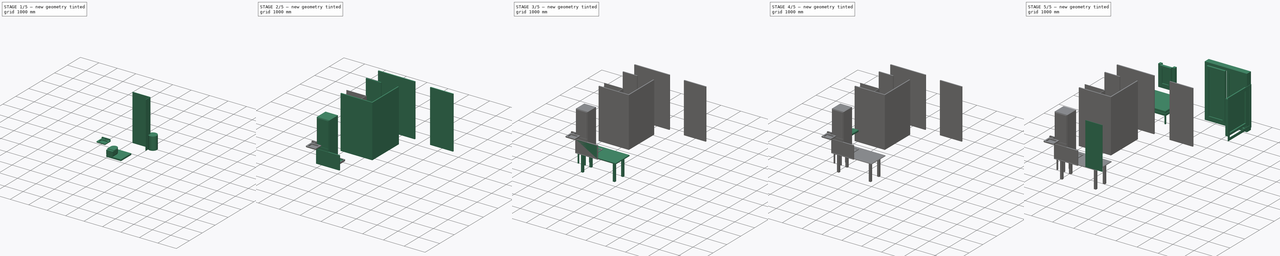
[diagram: build sequence overview — one tinted view per stage of 5, left to right]
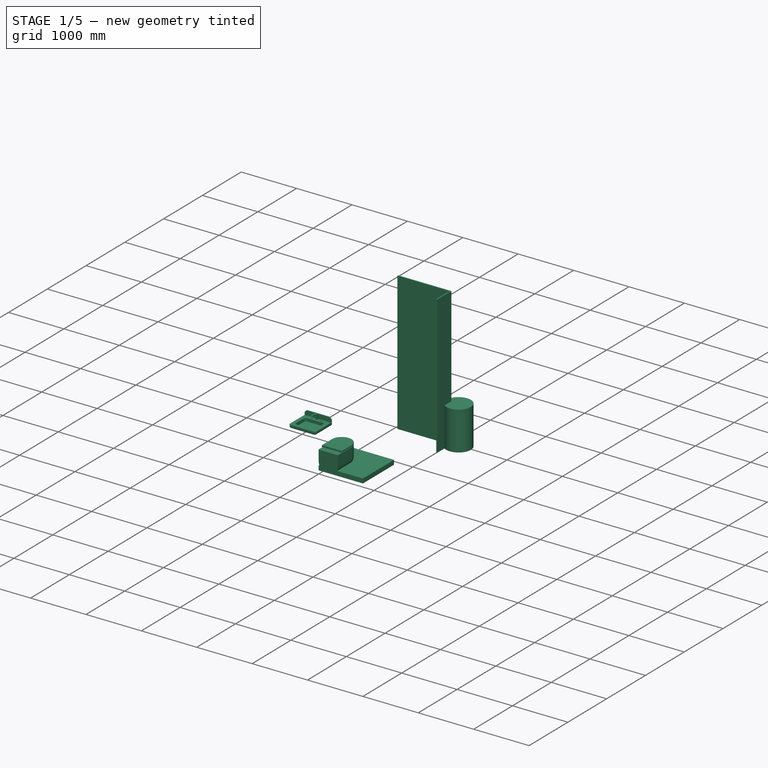
[diagram: stage 1 of 5 — iso view after this stage's code; geometry added in this stage tinted green]
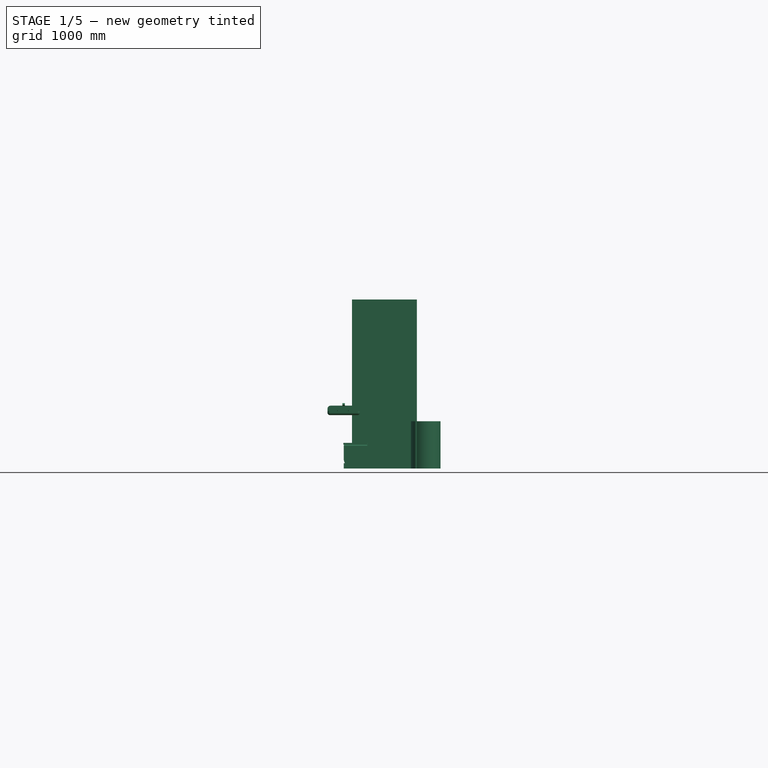
[diagram: stage 1 of 5 — front view after this stage's code; geometry added in this stage tinted green]
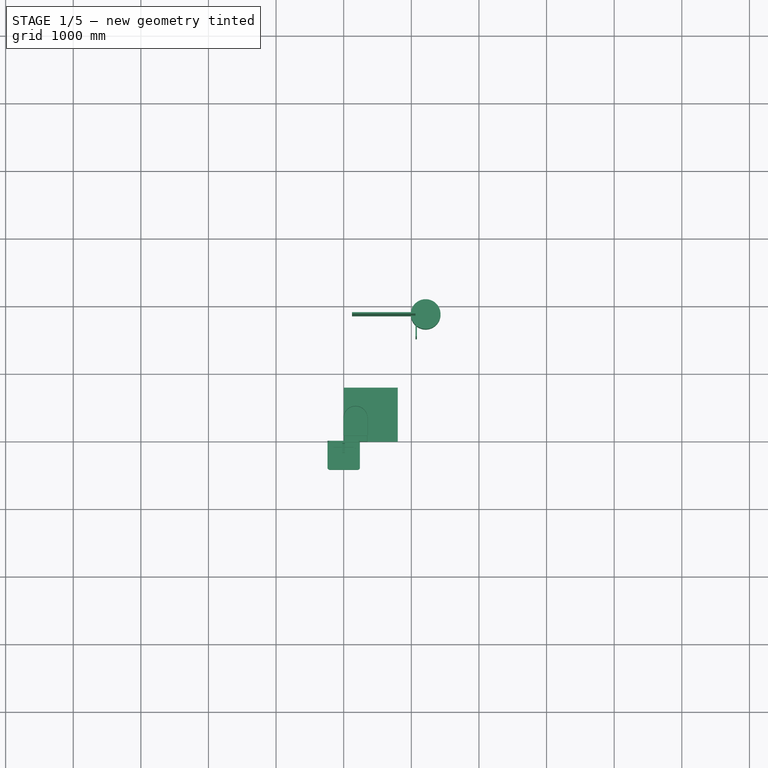
[diagram: stage 1 of 5 — top view after this stage's code; geometry added in this stage tinted green]
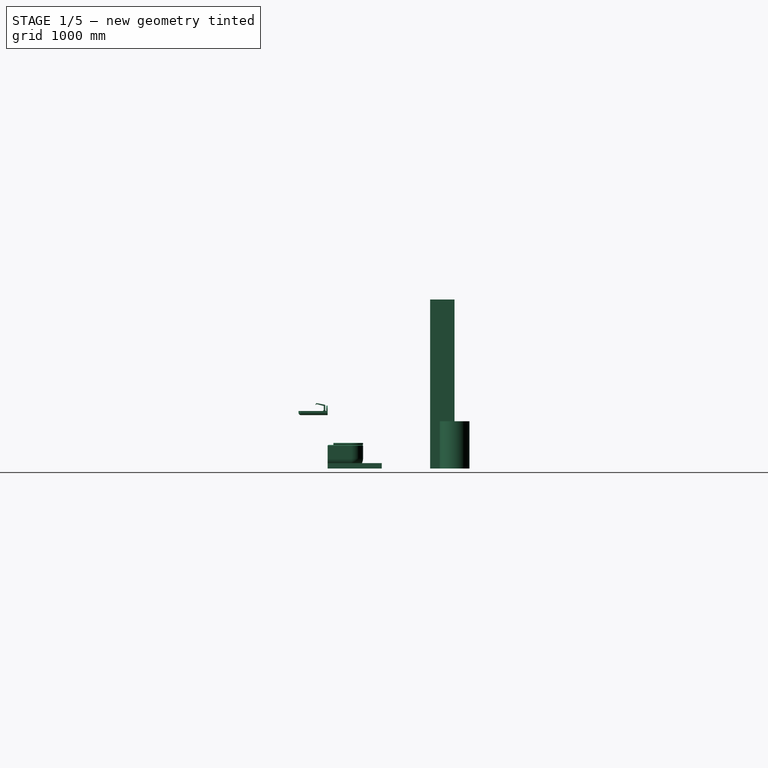
[diagram: stage 1 of 5 — right view after this stage's code; geometry added in this stage tinted green]
FCSTD DOCUMENT  (FreeCAD 0.20R29177 (Git))
Label: appart vide v2
License: All rights reserved
LicenseURL: http://en.wikipedia.org/wiki/All_rights_reserved
objects: Sketcher::SketchObject×44, PartDesign::Pad×27, PartDesign::Fillet×21, Part::Box×14, Part::Feature×11, PartDesign::Body×10, Part::FeaturePython×7, PartDesign::Pocket×7, Part::Fillet×3, PartDesign::Plane×3, Part::Compound×2, App::GeometryPython×1, Part::MultiFuse×1, PartDesign::LinearPattern×1, App::DocumentObjectGroup×1
note: 207 computed .brp shape members not serialized (recipe doc carries the construction recipe); baked Part::Feature solids carry a one-line shape summary decoded from their .brp

FEATURE [Sketcher::SketchObject] Sketch632
  FullyConstrained = false
  MapMode = 5
  sketch-geometry (7):
    g0: LineSegment StartX=16.6835 StartY=0 StartZ=0 EndX=416.684 EndY=0 EndZ=0
    g1: ArcOfCircle CenterX=416.684 CenterY=83.3165 CenterZ=0 NormalX=0 NormalY=0 NormalZ=1 AngleXU=0 Radius=83.3165 StartAngle=4.71239 EndAngle=8.26408
    g2: ArcOfCircle CenterX=200.026 CenterY=79.9745 CenterZ=0 NormalX=0 NormalY=0 NormalZ=1 AngleXU=0 Radius=200.026 StartAngle=0.410098 EndAngle=3.55291
    g3: LineSegment StartX=0 StartY=0 StartZ=0 EndX=500 EndY=0 EndZ=0
    g4: LineSegment StartX=500 StartY=0 StartZ=0 EndX=500 EndY=280 EndZ=0
    g5: LineSegment StartX=500 StartY=280 StartZ=0 EndX=0 EndY=280 EndZ=0
    g6: LineSegment StartX=0 StartY=280 StartZ=0 EndX=0 EndY=0 EndZ=0
  constraints (20):
    c: Horizontal(g0)
    c: Tangent(g0,g1) = -1.5708
    c: Perpendicular(g1,g2) = 4.71239
    c: Coincident(g3,g4)
    c: Coincident(g4,g5)
    c: Coincident(g5,g6)
    c: Coincident(g6,g3)
    c: Horizontal(g3)
    c: Horizontal(g5)
    c: Vertical(g4)
    c: Vertical(g6)
    c: Coincident(g3,g-1)
    c: DistanceX(g5) = -500
    c: DistanceY(g4) = 280
    c: Tangent(g2,g5)
    c: Tangent(g1,g4)
    c: PointOnObject(g0,g3)
    c: Coincident(g2,g0)
    c: Tangent(g2,g6)
    c: DistanceX(g0) = 400
FEATURE [Part::Feature] SOFA
  Placement = pos=(-267.43,571.149,946.217) rot=(0,0,1;0rad)
  shape: bbox 850 x 650 x 2000 mm, 24 faces, 0 solids (baked)
FEATURE [Part::Feature] SOFA001
  Placement = pos=(-167.43,671.149,2846.22) rot=(0,0,1;0rad)
  shape: bbox 750 x 550 x 200 mm, 26 faces, 0 solids (baked)
FEATURE [Part::Feature] SOFA002
  Placement = pos=(582.57,671.149,2646.22) rot=(0,0,1;3.14159rad)
  shape: bbox 750 x 200 x 700 mm, 26 faces, 0 solids (baked)
FEATURE [Part::Feature] SOFA003
  Placement = pos=(32.5698,871.149,1946.22) rot=(0,0,1;0rad)
  shape: bbox 200 x 350 x 700 mm, 26 faces, 0 solids (baked)
FEATURE [Part::Feature] SOFA004
  Placement = pos=(-117.43,511.149,2796.22) rot=(0,0,1;0rad)
  shape: bbox 80.96 x 80 x 80.96 mm, 6 faces, 0 solids (baked)
FEATURE [Part::Feature] SOFA005
  Placement = pos=(-167.43,671.149,1246.22) rot=(0,0,1;0rad)
  shape: bbox 750 x 550 x 200 mm, 26 faces, 0 solids (baked)
FEATURE [Part::Feature] SOFA006
  Placement = pos=(-167.43,871.149,1946.22) rot=(0,0,1;0rad)
  shape: bbox 750 x 200 x 700 mm, 26 faces, 0 solids (baked)
FEATURE [Part::Feature] SOFA007
  Placement = pos=(-167.43,871.149,1946.22) rot=(0,1,0;3.14159rad)
  shape: bbox 200 x 350 x 700 mm, 26 faces, 0 solids (baked)
FEATURE [Part::Feature] SOFA008
  Placement = pos=(432.57,591.149,2796.22) rot=(0.967822,0,0.251636;3.14159rad)
  shape: bbox 110.1 x 80 x 110.1 mm, 6 faces, 0 solids (baked)
FEATURE [Part::Feature] SOFA009
  Placement = pos=(432.57,591.149,1096.22) rot=(0.958428,0,0.285334;3.14159rad)
  shape: bbox 112.1 x 80 x 112.1 mm, 6 faces, 0 solids (baked)
FEATURE [Part::Feature] SOFA010
  Placement = pos=(-117.43,591.149,1096.22) rot=(-0.285334,0,0.958428;3.14159rad)
  shape: bbox 112.1 x 80 x 112.1 mm, 6 faces, 0 solids (baked)
FEATURE [Part::Compound] Compound001  label="Sofa"
  Links = -> [SOFA,SOFA001,SOFA002,SOFA003,SOFA004,SOFA005,SOFA006,SOFA007,SOFA008,SOFA009,SOFA010]
  Placement = pos=(4725,342,-585) rot=(0,0.707107,0.707107;3.14159rad)
FEATURE [Sketcher::SketchObject] Sketch196  label="Sketch197"
  FullyConstrained = true
  MapMode = 5
  Support = -> [XY_Plane011]
  sketch-geometry (4):
    g0: LineSegment StartX=0 StartY=0 StartZ=0 EndX=800 EndY=0 EndZ=0
    g1: LineSegment StartX=800 StartY=0 StartZ=0 EndX=800 EndY=800 EndZ=0
    g2: LineSegment StartX=800 StartY=800 StartZ=0 EndX=0 EndY=800 EndZ=0
    g3: LineSegment StartX=0 StartY=800 StartZ=0 EndX=0 EndY=0 EndZ=0
  constraints (11):
    c: Coincident(g0,g1)
    c: Coincident(g1,g2)
    c: Coincident(g2,g3)
    c: Coincident(g3,g0)
    c: Horizontal(g0)
    c: Horizontal(g2)
    c: Vertical(g1)
    c: Vertical(g3)
    c: Coincident(g0,g-1)
    c: DistanceX(g2,g2) = 800
    c: DistanceY(g3,g3) = 800
FEATURE [PartDesign::Pad] Pad016
  AllowMultiFace = false
  Direction = (0,0,1)
  Length = 80
  Length2 = 100
  Profile = -> Sketch196
  Type = 0
FEATURE [PartDesign::Body] Body011  label="douche 80x80"
  Group = -> [Sketch196,Pad016,Sketch197,Pocket008,Sketch198,Pocket009,Fillet016,Fillet017]
  Origin = -> BodyOrigin
  Placement = pos=(65,1875,0) rot=(0,0,1;0rad)
  Tip = -> Fillet017
FEATURE [Sketcher::SketchObject] Sketch194  label="Sketch195"
  FullyConstrained = false
  MapMode = 5
  Support = -> [XY_Plane010]
  sketch-geometry (5):
    g0: LineSegment StartX=0 StartY=350 StartZ=0 EndX=0 EndY=0 EndZ=0
    g1: LineSegment StartX=0 StartY=0 StartZ=0 EndX=350 EndY=0 EndZ=0
    g2: LineSegment StartX=350 StartY=0 StartZ=0 EndX=350 EndY=350 EndZ=0
    g3: ArcOfCircle CenterX=175 CenterY=350 CenterZ=0 NormalX=0 NormalY=0 NormalZ=1 AngleXU=0 Radius=175 StartAngle=-6.2e-15 EndAngle=3.14159
    g4: LineSegment StartX=0 StartY=350 StartZ=0 EndX=175 EndY=350 EndZ=0
  constraints (14):
    c: Vertical(g0)
    c: Coincident(g0,g1)
    c: Horizontal(g1)
    c: Coincident(g1,g2)
    c: Vertical(g2)
    c: DistanceY(g0,g0) = 350
    c: DistanceX(g1,g1) = 350
    c: Equal(g2,g0)
    c: Coincident(g3,g0)
    c: Coincident(g3,g2)
    c: Coincident(g0,g-1)
    c: Coincident(g4,g0)
    c: Horizontal(g4)
    c: Coincident(g3,g4)
FEATURE [PartDesign::Pad] Pad014
  AllowMultiFace = false
  Direction = (1,1,1)
  Length = 350
  Length2 = 100
  Profile = -> Sketch194
  Type = 0
FEATURE [PartDesign::Fillet] Fillet013
  Base = -> Pad014 [Edge9,Edge11,Edge3]
  BaseFeature = -> Pad014
  Radius = 150
  SupportTransform = false
  UseAllEdges = false
FEATURE [PartDesign::Fillet] Fillet014
  Base = -> Fillet013 [Face4]
  BaseFeature = -> Fillet013
  Radius = 15
  SupportTransform = false
  UseAllEdges = false
FEATURE [Sketcher::SketchObject] Sketch195  label="Sketch196"
  FullyConstrained = false
  MapMode = 5
  Placement = pos=(0,0,350) rot=(0,0,1;0rad)
  Support = -> [Fillet013]
  sketch-geometry (4):
    g0: LineSegment StartX=-5 StartY=85 StartZ=0 EndX=355 EndY=85 EndZ=0
    g1: LineSegment StartX=-5 StartY=85 StartZ=0 EndX=-5 EndY=345 EndZ=0
    g2: LineSegment StartX=355 StartY=85 StartZ=0 EndX=355 EndY=345 EndZ=0
    g3: ArcOfCircle CenterX=175 CenterY=345 CenterZ=0 NormalX=0 NormalY=0 NormalZ=1 AngleXU=0 Radius=180 StartAngle=0 EndAngle=3.14159
  constraints (13):
    c: Horizontal(g0)
    c: DistanceX(g0) = -5
    c: DistanceY(g0) = 85
    c: DistanceY(g1,g1) = 260
    c: Equal(g2,g1)
    c: Coincident(g3,g2)
    c: DistanceX(g3) = 175
    c: Coincident(g1,g3)
    c: Coincident(g0,g2)
    c: Coincident(g0,g1)
    c: DistanceX(g0,g0) = 360
    c: Radius(g3) = 180
    c: Horizontal(g3,g1)
FEATURE [PartDesign::Pad] Pad015
  AllowMultiFace = false
  BaseFeature = -> Fillet014
  Direction = (1,1,1)
  Length = 30
  Length2 = 100
  Profile = -> Sketch195
  Type = 0
FEATURE [PartDesign::Fillet] Fillet015
  Base = -> Pad015 [Face16,Face15,Face17]
  BaseFeature = -> Pad015
  Radius = 10
  SupportTransform = false
  UseAllEdges = false
FEATURE [PartDesign::Body] Body010  label="wc"
  Group = -> [Sketch194,Pad014,Fillet013,Sketch195,Fillet014,Pad015,Fillet015]
  Origin = -> Origin010
  Placement = pos=(1156,1615,0) rot=(0,0,1;0rad)
  Tip = -> Fillet015
FEATURE [PartDesign::Plane] DatumPlane
  AttachmentOffset = pos=(0,0,850) rot=(0,0,1;0rad)
  Length = 573.467
  MapMode = 5
  Placement = pos=(0,0,850) rot=(0,0,1;0rad)
  ResizeMode = 0
  Support = -> [XY_Plane012]
  Width = 548.467
FEATURE [PartDesign::Plane] DatumPlane002
  AttachmentOffset = pos=(0,0,17) rot=(0,0,1;0rad)
  Length = 589.39
  MapMode = 5
  Placement = pos=(17,4.7e-15,-9e-16) rot=(0.57735,0.57735,0.57735;2.0944rad)
  ResizeMode = 0
  Support = -> [YZ_Plane012]
  Width = 1126.73
FEATURE [Sketcher::SketchObject] Sketch199  label="Sketch200"
  FullyConstrained = false
  MapMode = 5
  Placement = pos=(0,0,850) rot=(0,0,1;0rad)
  Support = -> [DatumPlane]
  sketch-geometry (6):
    g0: LineSegment StartX=-240 StartY=0 StartZ=0 EndX=240 EndY=0 EndZ=0
    g1: LineSegment StartX=240 StartY=0 StartZ=0 EndX=240 EndY=-395 EndZ=0
    g2: ArcOfCircle CenterX=205 CenterY=-395 CenterZ=0 NormalX=0 NormalY=0 NormalZ=1 AngleXU=0 Radius=35 StartAngle=4.71239 EndAngle=6.28319
    g3: LineSegment StartX=205 StartY=-430 StartZ=0 EndX=-205 EndY=-430 EndZ=0
    g4: ArcOfCircle CenterX=-205 CenterY=-395 CenterZ=0 NormalX=0 NormalY=0 NormalZ=1 AngleXU=0 Radius=35 StartAngle=3.14159 EndAngle=4.71239
    g5: LineSegment StartX=-240 StartY=-395 StartZ=0 EndX=-240 EndY=0 EndZ=0
  constraints (16):
    c: Horizontal(g0)
    c: Coincident(g0,g1)
    c: Vertical(g1)
    c: Tangent(g1,g2) = 1.5708
    c: Tangent(g2,g3) = 1.5708
    c: Tangent(g3,g4) = 1.5708
    c: Tangent(g4,g5) = 1.5708
    c: Coincident(g5,g0)
    c: PointOnObject(g0,g-1)
    c: Vertical(g5)
    c: Horizontal(g3)
    c: Radius(g2) = 35
    c: Radius(g4) = 35
    c: DistanceX(g0,g-1) = 240
    c: DistanceX(g0,g0) = 480
    c: DistanceY(g3,g0) = 430
FEATURE [PartDesign::Pad] Pad017
  AllowMultiFace = false
  Direction = (1,1,1)
  Length = 60
  Length2 = 100
  Placement = pos=(0,0,850) rot=(0,0,1;0rad)
  Profile = -> Sketch199
  Reversed = true
  Type = 0
FEATURE [PartDesign::Fillet] Fillet018
  Base = -> Pad017 [Edge13,Edge16,Edge18,Edge10,Edge7]
  BaseFeature = -> Pad017
  Placement = pos=(0,0,850) rot=(0,0,1;0rad)
  Radius = 35
  SupportTransform = false
  UseAllEdges = false
FEATURE [Sketcher::SketchObject] Sketch200  label="Sketch201"
  FullyConstrained = false
  MapMode = 5
  Placement = pos=(0,0,850) rot=(0,0,1;0rad)
  Support = -> [Fillet018]
  sketch-geometry (8):
    g0: LineSegment StartX=-140 StartY=-95 StartZ=0 EndX=140 EndY=-95 EndZ=0
    g1: ArcOfCircle CenterX=140 CenterY=-130 CenterZ=0 NormalX=0 NormalY=0 NormalZ=1 AngleXU=0 Radius=35 StartAngle=0 EndAngle=1.5708
    g2: LineSegment StartX=175 StartY=-130 StartZ=0 EndX=175 EndY=-330 EndZ=0
    g3: ArcOfCircle CenterX=140 CenterY=-330 CenterZ=0 NormalX=0 NormalY=0 NormalZ=1 AngleXU=0 Radius=35 StartAngle=4.71239 EndAngle=6.28319
    g4: LineSegment StartX=140 StartY=-365 StartZ=0 EndX=-140 EndY=-365 EndZ=0
    g5: ArcOfCircle CenterX=-140 CenterY=-330 CenterZ=0 NormalX=0 NormalY=0 NormalZ=1 AngleXU=0 Radius=35 StartAngle=3.14159 EndAngle=4.71239
    g6: LineSegment StartX=-175 StartY=-330 StartZ=0 EndX=-175 EndY=-130 EndZ=0
    g7: ArcOfCircle CenterX=-140 CenterY=-130 CenterZ=0 NormalX=0 NormalY=0 NormalZ=1 AngleXU=0 Radius=35 StartAngle=1.5708 EndAngle=3.14159
  constraints (21):
    c: Horizontal(g0)
    c: Tangent(g0,g1) = 1.5708
    c: Tangent(g1,g2) = 1.5708
    c: Tangent(g2,g3) = 1.5708
    c: Tangent(g3,g4) = 1.5708
    c: Tangent(g4,g5) = 1.5708
    c: Tangent(g5,g6) = 1.5708
    c: Tangent(g6,g7) = 1.5708
    c: Coincident(g7,g0)
    c: Vertical(g6)
    c: Horizontal(g4)
    c: Vertical(g2)
    c: Radius(g1) = 35
    c: Radius(g3) = 35
    c: Radius(g5) = 35
    c: Radius(g7) = 35
    c: DistanceX(g6,g1) = 350
    c: DistanceY(g4,g0) = 270
    c: DistanceY(g0,g-1) = 95
    c: DistanceX(g6,g-1) = 175
    c: Tangent(g7,g0,g0) = 1.5708
FEATURE [PartDesign::Pocket] Pocket010
  AllowMultiFace = false
  BaseFeature = -> Fillet018
  Direction = (1,1,1)
  Length = 55
  Length2 = 100
  Placement = pos=(0,0,850) rot=(0,0,1;0rad)
  Profile = -> Sketch200
  Type = 0
FEATURE [Sketcher::SketchObject] Sketch201  label="Sketch202"
  FullyConstrained = false
  MapMode = 5
  Placement = pos=(0,0,850) rot=(0,0,1;0rad)
  Support = -> [Pocket010]
  sketch-geometry (4):
    g0: LineSegment StartX=-240 StartY=0 StartZ=0 EndX=240 EndY=0 EndZ=0
    g1: LineSegment StartX=240 StartY=0 StartZ=0 EndX=240 EndY=-20 EndZ=0
    g2: LineSegment StartX=240 StartY=-20 StartZ=0 EndX=-240 EndY=-20 EndZ=0
    g3: LineSegment StartX=-240 StartY=-20 StartZ=0 EndX=-240 EndY=0 EndZ=0
  constraints (12):
    c: Coincident(g0,g1)
    c: Coincident(g1,g2)
    c: Coincident(g2,g3)
    c: Coincident(g3,g0)
    c: Horizontal(g0)
    c: Horizontal(g2)
    c: Vertical(g1)
    c: Vertical(g3)
    c: PointOnObject(g0,g-1)
    c: DistanceY(g3,g3) = 20
    c: DistanceX(g2,g2) = 480
    c: DistanceX(g0,g-1) = 240
FEATURE [PartDesign::Pad] Pad018
  AllowMultiFace = false
  BaseFeature = -> Pocket010
  Direction = (1,1,1)
  Length = 80
  Length2 = 100
  Placement = pos=(0,0,850) rot=(0,0,1;0rad)
  Profile = -> Sketch201
  Type = 0
FEATURE [PartDesign::Fillet] Fillet019
  Base = -> Pad018 [Edge35,Edge64]
  BaseFeature = -> Pad018
  Placement = pos=(0,0,850) rot=(0,0,1;0rad)
  Radius = 50
  SupportTransform = false
  UseAllEdges = false
FEATURE [Sketcher::SketchObject] Sketch202  label="Sketch203"
  FullyConstrained = false
  MapMode = 5
  Placement = pos=(0,0,850) rot=(0,0,1;0rad)
  Support = -> [Fillet019]
  sketch-geometry (1):
    g0: Circle CenterX=-80 CenterY=-50 CenterZ=0 NormalX=0 NormalY=0 NormalZ=1 AngleXU=0 Radius=18
  constraints (3):
    c: DistanceX(g0) = -80
    c: DistanceY(g0) = -50
    c: Radius(g0) = 18
FEATURE [PartDesign::Pad] Pad019
  AllowMultiFace = false
  BaseFeature = -> Fillet019
  Direction = (1,1,1)
  Length = 10
  Length2 = 100
  Placement = pos=(0,0,850) rot=(0,0,1;0rad)
  Profile = -> Sketch202
  Type = 0
FEATURE [PartDesign::LinearPattern] LinearPattern
  BaseFeature = -> Pad019
  Direction = -> Sketch202 [H_Axis]
  Length = 160
  Occurrences = 2
  Originals = -> [Pad019]
  Placement = pos=(0,0,850) rot=(0,0,1;0rad)
FEATURE [PartDesign::Plane] DatumPlane001
  Length = 618.032
  MapMode = 5
  Placement = pos=(0,0,850) rot=(0,0.707107,0.707107;3.14159rad)
  ResizeMode = 0
  Support = -> [LinearPattern]
  Width = 1130.37
FEATURE [Sketcher::SketchObject] Sketch203  label="Sketch204"
  FullyConstrained = false
  MapMode = 5
  Placement = pos=(0,0,850) rot=(0,0.707107,0.707107;3.14159rad)
  Support = -> [DatumPlane001]
  sketch-geometry (1):
    g0: Circle CenterX=0 CenterY=-140 CenterZ=0 NormalX=0 NormalY=0 NormalZ=1 AngleXU=0 Radius=25
  constraints (3):
    c: PointOnObject(g0,g-2)
    c: Radius(g0) = 25
    c: DistanceY(g0,g-1) = 140
FEATURE [Sketcher::SketchObject] Sketch204  label="Sketch205"
  FullyConstrained = false
  MapMode = 5
  Placement = pos=(0,0,0) rot=(0.57735,0.57735,0.57735;2.0944rad)
  Support = -> [YZ_Plane012]
  sketch-geometry (4):
    g0: LineSegment StartX=0 StartY=690 StartZ=0 EndX=-47.5 EndY=690 EndZ=0
    g1: LineSegment StartX=-47.5 StartY=690 StartZ=0 EndX=-47.5 EndY=611.5 EndZ=0
    g2: ArcOfCircle CenterX=-107.5 CenterY=611.5 CenterZ=0 NormalX=0 NormalY=0 NormalZ=1 AngleXU=0 Radius=60 StartAngle=3.14159 EndAngle=6.28319
    g3: LineSegment StartX=-167.5 StartY=611.5 StartZ=0 EndX=-167.5 EndY=801.5 EndZ=0
  constraints (12):
    c: Horizontal(g0)
    c: Coincident(g0,g1)
    c: Vertical(g1)
    c: Tangent(g1,g2) = 1.5708
    c: Tangent(g2,g3) = 1.5708
    c: Vertical(g3)
    c: DistanceY(g-1,g0) = 690
    c: Radius(g2) = 60
    c: PointOnObject(g0,g-2)
    c: DistanceX(g0,g0) = 47.5
    c: DistanceY(g1,g1) = 78.5
    c: DistanceY(g3,g3) = 190
FEATURE [Sketcher::SketchObject] Sketch205  label="Sketch206"
  FullyConstrained = false
  MapMode = 5
  Placement = pos=(17,4.7e-15,-9e-16) rot=(0.57735,0.57735,0.57735;2.0944rad)
  Support = -> [DatumPlane002]
  sketch-geometry (10):
    g0: LineSegment StartX=-35 StartY=850 StartZ=0 EndX=-35 EndY=928.466 EndZ=0
    g1: ArcOfCircle CenterX=-52.5219 CenterY=928.466 CenterZ=0 NormalX=0 NormalY=0 NormalZ=1 AngleXU=0 Radius=17.5219 StartAngle=0 EndAngle=1.38342
    g2: LineSegment StartX=-49.258 StartY=945.681 StartZ=0 EndX=-162.646 EndY=967.179 EndZ=0
    g3: ArcOfCircle CenterX=-164.465 CenterY=957.586 CenterZ=0 NormalX=0 NormalY=0 NormalZ=1 AngleXU=0 Radius=9.7644 StartAngle=1.38342 EndAngle=2.81076
    g4: LineSegment StartX=-173.699 StartY=960.757 StartZ=0 EndX=-180.021 EndY=942.353 EndZ=0
    g5: LineSegment StartX=-180.021 StartY=942.353 StartZ=0 EndX=-169.633 EndY=938.785 EndZ=0
    g6: LineSegment StartX=-169.633 StartY=938.785 StartZ=0 EndX=-164.783 EndY=952.907 EndZ=0
    g7: LineSegment StartX=-164.783 StartY=952.907 StartZ=0 EndX=-56.839 EndY=925.531 EndZ=0
    g8: LineSegment StartX=-56.839 StartY=925.531 StartZ=0 EndX=-56.839 EndY=850 EndZ=0
    g9: LineSegment StartX=-56.839 StartY=850 StartZ=0 EndX=-35 EndY=850 EndZ=0
  constraints (15):
    c: Vertical(g0)
    c: Tangent(g0,g1) = -1.5708
    c: Tangent(g1,g2) = -1.5708
    c: Tangent(g2,g3) = -1.5708
    c: Tangent(g3,g4) = -1.5708
    c: Perpendicular(g4,g5) = 1.5708
    c: Perpendicular(g5,g6) = 1.5708
    c: Coincident(g6,g7)
    c: Coincident(g7,g8)
    c: Vertical(g8)
    c: Coincident(g9,g8)
    c: Coincident(g9,g0)
    c: Horizontal(g9)
    c: DistanceX(g0) = -35
    c: DistanceY(g0) = 850
FEATURE [PartDesign::Pad] Pad020
  AllowMultiFace = false
  BaseFeature = -> LinearPattern
  Direction = (1,1,1)
  Length = 36
  Length2 = 100
  Placement = pos=(0,0,850) rot=(0,0,1;0rad)
  Profile = -> Sketch205
  Reversed = true
  Type = 0
FEATURE [Part::FeaturePython] Wall002  label="Colonne Vmc"  # Arch/BIM 166 (typed FeaturePython)
  Align = 2
  Area = 3250000
  Base = -> Sketch633
  BlockHeight = 0
  BlockLength = 0
  CountBroken = 0
  CountEntire = 0
  Face = 0
  Height = 2500
  HorizontalArea = 26000
  IfcData = attributes={"GlobalId": {"name": "GlobalId", "type": "IfcGloballyUniqueId", "is_enum": false, "enum_values": []}, "Description": {"... (+533 chars omitted),+1 more (map truncated)
  IfcType = 166
  Joint = 0
  Length = 1300
  MakeBlocks = false
  MoveBase = false
  MoveWithHost = false
  Normal = (0,0,0)
  OffsetFirst = 0
  OffsetSecond = 0
  PerimeterLength = 2640
  PredefinedType = 0
  VerticalArea = 6600000
  Width = 20
FEATURE [Sketcher::SketchObject] Sketch634
  FullyConstrained = false
  MapMode = 5
  Support = -> [XY_Plane129]
  sketch-geometry (1):
    g0: Circle CenterX=1211.85 CenterY=1878.11 CenterZ=0 NormalX=0 NormalY=0 NormalZ=1 AngleXU=0 Radius=220
  constraints (1):
    c: Diameter(g0) = 440
FEATURE [PartDesign::Pad] Pad303
  Direction = (0,0,1)
  Length = 700
  Length2 = 10
  Profile = -> Sketch634
  ReferenceAxis = -> Sketch634 [N_Axis]
  Type = 0
FEATURE [PartDesign::Body] Body128  label="cumulus"
  Group = -> [Sketch634,Pad303]
  Origin = -> Origin125
  Placement = pos=(140,-87,1435) rot=(0,0,1;0rad)
  Tip = -> Pad303
FEATURE [App::DocumentObjectGroup] Group  label="objets"
  Group = -> [Compound,Body001,Body002,Body125,Body126,Body127,Fusion,Compound001,Body011,Body010,Body012,Body128]
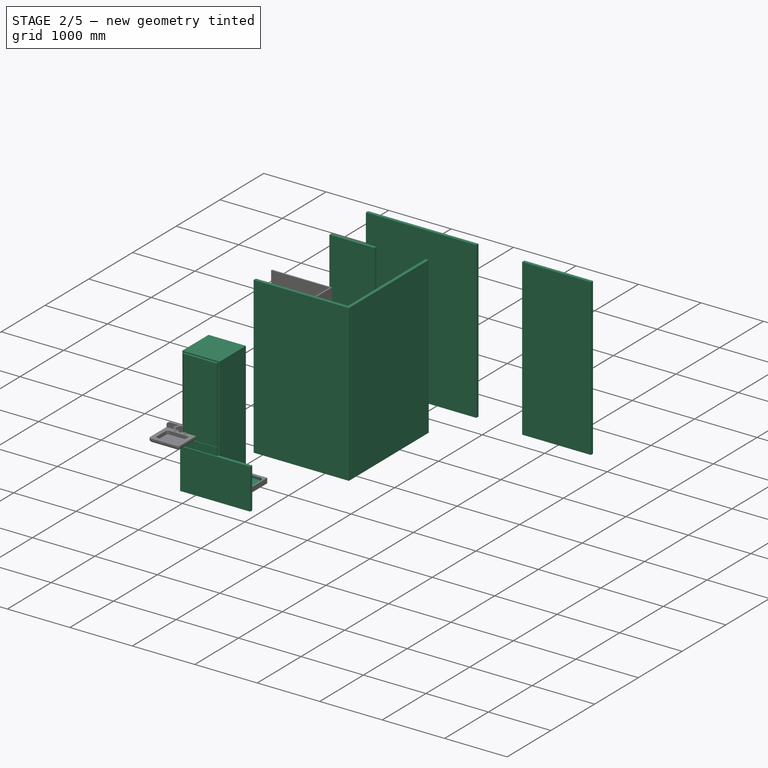
[diagram: stage 2 of 5 — iso view after this stage's code; geometry added in this stage tinted green]
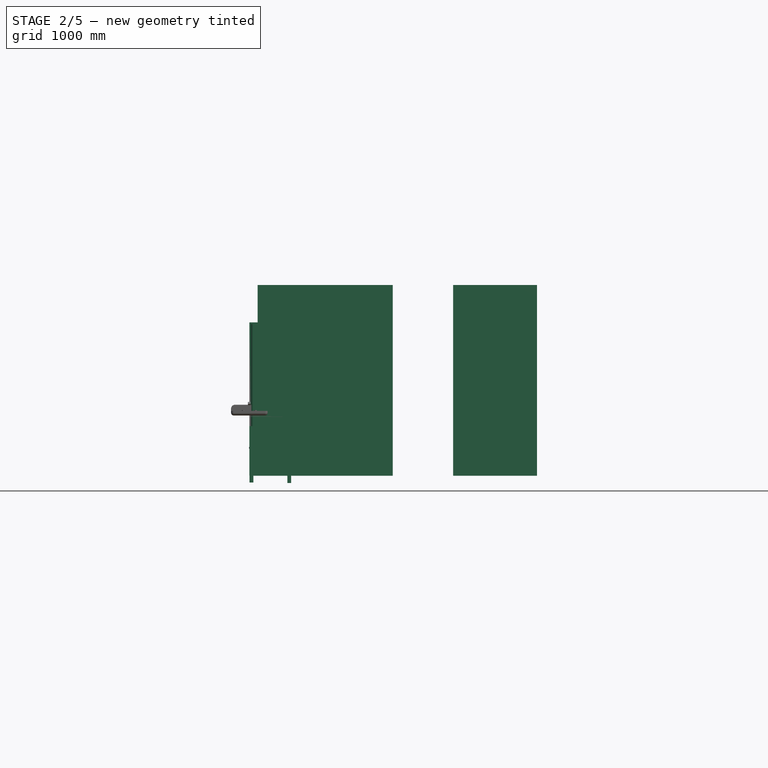
[diagram: stage 2 of 5 — front view after this stage's code; geometry added in this stage tinted green]
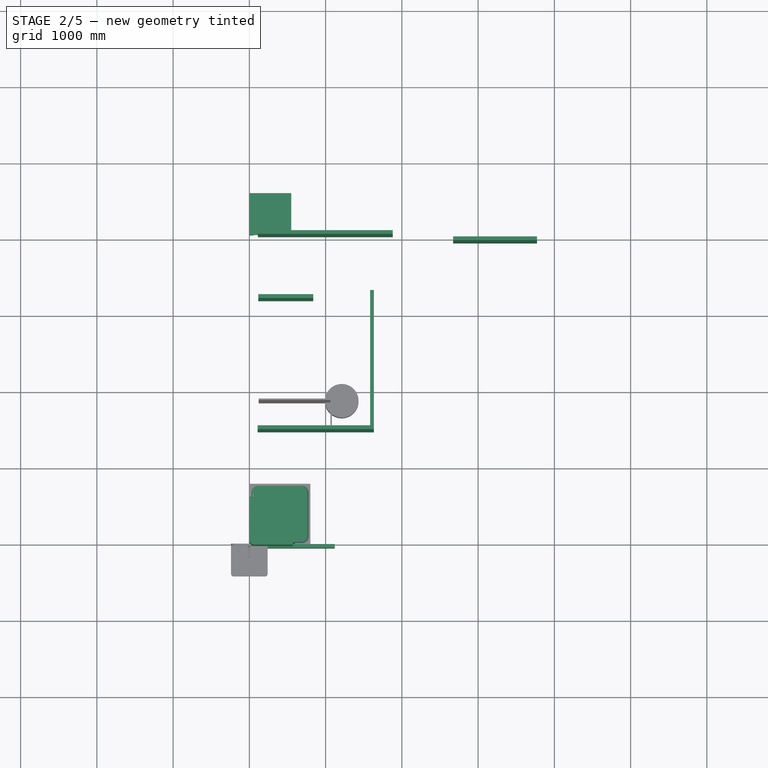
[diagram: stage 2 of 5 — top view after this stage's code; geometry added in this stage tinted green]
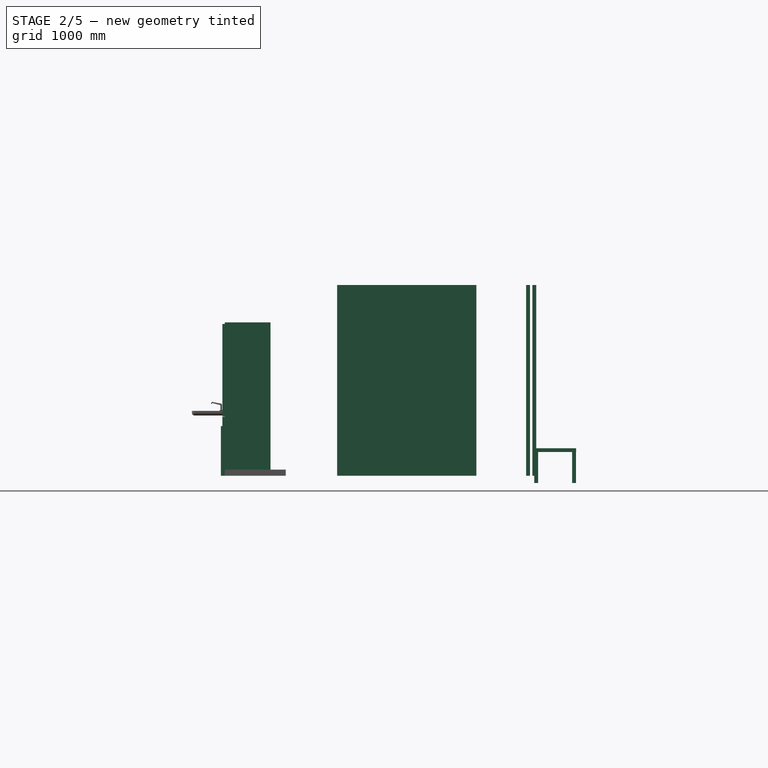
[diagram: stage 2 of 5 — right view after this stage's code; geometry added in this stage tinted green]
FEATURE [PartDesign::Body] Body125  label="SimpleChair"
  Group = -> [Sketch619,Pad295,Sketch623,Pad298,Sketch620,Pad294,Sketch622,Pad293,Sketch621,Pad296,Sketch624,Pad297,Fillet207,Fillet208,Fillet209]
  Origin = -> Origin122
  Placement = pos=(3270,2526,462) rot=(0,0,-1;1.5708rad)
  Tip = -> Fillet209
FEATURE [Sketcher::SketchObject] Sketch625
  FullyConstrained = false
  MapMode = 5
  Placement = pos=(0,0,0) rot=(1,0,0;1.5708rad)
  Support = -> [XZ_Plane127]
  sketch-geometry (4):
    g0: LineSegment StartX=0 StartY=0 StartZ=0 EndX=1120 EndY=0 EndZ=0
    g1: LineSegment StartX=1120 StartY=0 StartZ=0 EndX=1120 EndY=650 EndZ=0
    g2: LineSegment StartX=1120 StartY=650 StartZ=0 EndX=0 EndY=650 EndZ=0
    g3: LineSegment StartX=0 StartY=650 StartZ=0 EndX=0 EndY=0 EndZ=0
  constraints (11):
    c: Coincident(g0,g1)
    c: Coincident(g1,g2)
    c: Coincident(g2,g3)
    c: Coincident(g3,g0)
    c: Horizontal(g0)
    c: Horizontal(g2)
    c: Vertical(g1)
    c: Vertical(g3)
    c: Coincident(g0,g-1)
    c: DistanceY(g1,g1) = 650
    c: DistanceX(g0,g0) = 1120
FEATURE [PartDesign::Pad] Pad299
  AllowMultiFace = false
  Direction = (1,1,1)
  Length = 50
  Length2 = 100
  Placement = pos=(0,0,0) rot=(1,0,0;1.5708rad)
  Profile = -> Sketch625
  Type = 0
FEATURE [PartDesign::Body] Body126  label="TV_50inches"
  Group = -> [Sketch625,Pad299,Sketch626,Pocket007,Fillet210]
  Origin = -> Origin123
  Placement = pos=(1641,1679,1299) rot=(0,0,1;1.5708rad)
  Tip = -> Fillet210
FEATURE [Sketcher::SketchObject] Sketch627
  FullyConstrained = false
  MapMode = 5
  Support = -> [XY_Plane128]
  sketch-geometry (4):
    g0: LineSegment StartX=0 StartY=0 StartZ=0 EndX=597 EndY=0 EndZ=0
    g1: LineSegment StartX=597 StartY=0 StartZ=0 EndX=597 EndY=600 EndZ=0
    g2: LineSegment StartX=597 StartY=600 StartZ=0 EndX=0 EndY=600 EndZ=0
    g3: LineSegment StartX=0 StartY=600 StartZ=0 EndX=0 EndY=0 EndZ=0
  constraints (11):
    c: Coincident(g0,g1)
    c: Coincident(g1,g2)
    c: Coincident(g2,g3)
    c: Coincident(g3,g0)
    c: Horizontal(g0)
    c: Horizontal(g2)
    c: Vertical(g1)
    c: Vertical(g3)
    c: Coincident(g0,g-1)
    c: DistanceX(g0,g0) = 597
    c: DistanceY(g1,g1) = 600
FEATURE [PartDesign::Pad] Pad300
  AllowMultiFace = false
  Direction = (1,1,1)
  Length = 2011
  Length2 = 100
  Profile = -> Sketch627
  Type = 0
FEATURE [Sketcher::SketchObject] Sketch628
  FullyConstrained = false
  MapMode = 5
  Placement = pos=(0,0,0) rot=(1,0,0;1.5708rad)
  Support = -> [Pad300]
  sketch-geometry (4):
    g0: LineSegment StartX=20 StartY=1990 StartZ=0 EndX=570 EndY=1990 EndZ=0
    g1: LineSegment StartX=570 StartY=1990 StartZ=0 EndX=570 EndY=780 EndZ=0
    g2: LineSegment StartX=570 StartY=780 StartZ=0 EndX=20 EndY=780 EndZ=0
    g3: LineSegment StartX=20 StartY=780 StartZ=0 EndX=20 EndY=1990 EndZ=0
  constraints (12):
    c: Coincident(g0,g1)
    c: Coincident(g1,g2)
    c: Coincident(g2,g3)
    c: Coincident(g3,g0)
    c: Horizontal(g0)
    c: Horizontal(g2)
    c: Vertical(g1)
    c: Vertical(g3)
    c: DistanceX(g2,g2) = 550
    c: DistanceY(g1,g1) = 1210
    c: DistanceX(g2) = 20
    c: DistanceY(g2) = 780
FEATURE [PartDesign::Pad] Pad301
  AllowMultiFace = false
  BaseFeature = -> Pad300
  Direction = (1,1,1)
  Length = 30
  Length2 = 100
  Profile = -> Sketch628
  Type = 0
FEATURE [PartDesign::Fillet] Fillet211
  Base = -> Pad301 [Edge24]
  BaseFeature = -> Pad301
  Radius = 29
  SupportTransform = false
  UseAllEdges = false
FEATURE [Sketcher::SketchObject] Sketch629
  FullyConstrained = false
  MapMode = 5
  Placement = pos=(0,0,0) rot=(1,0,0;1.5708rad)
  Support = -> [Fillet211]
  sketch-geometry (4):
    g0: LineSegment StartX=20 StartY=20 StartZ=0 EndX=570 EndY=20 EndZ=0
    g1: LineSegment StartX=570 StartY=20 StartZ=0 EndX=570 EndY=774 EndZ=0
    g2: LineSegment StartX=570 StartY=774 StartZ=0 EndX=20 EndY=774 EndZ=0
    g3: LineSegment StartX=20 StartY=774 StartZ=0 EndX=20 EndY=20 EndZ=0
  constraints (12):
    c: Coincident(g0,g1)
    c: Coincident(g1,g2)
    c: Coincident(g2,g3)
    c: Coincident(g3,g0)
    c: Horizontal(g0)
    c: Horizontal(g2)
    c: Vertical(g1)
    c: Vertical(g3)
    c: DistanceX(g2,g2) = 550
    c: DistanceY(g3,g3) = 754
    c: DistanceX(g0) = 20
    c: DistanceY(g0) = 20
FEATURE [PartDesign::Pad] Pad302
  AllowMultiFace = false
  BaseFeature = -> Fillet211
  Direction = (1,1,1)
  Length = 30
  Length2 = 100
  Profile = -> Sketch629
  Type = 0
FEATURE [PartDesign::Fillet] Fillet212
  Base = -> Pad302 [Edge34]
  BaseFeature = -> Pad302
  Radius = 29
  SupportTransform = false
  UseAllEdges = false
FEATURE [PartDesign::Body] Body127  label="Fridge_600x600x2000mm"
  Group = -> [Sketch627,Pad300,Sketch628,Pad301,Fillet211,Sketch629,Pad302,Fillet212]
  Origin = -> Origin124
  Placement = pos=(3259,4046,15) rot=(0,0,1;1.5708rad)
  Tip = -> Fillet212
FEATURE [Part::Box] Box009  label="Box"
  AttacherType = Attacher::AttachEngine3D
  Height = 50
  Length = 550
  Placement = pos=(0,0,400) rot=(0,0,1;0rad)
  Width = 550
FEATURE [Part::Box] Box010  label="Box001"
  AttacherType = Attacher::AttachEngine3D
  Height = 405
  Length = 50.5
  Placement = pos=(1.5,1.5,0) rot=(0,0,1;0rad)
  Width = 50.5
FEATURE [Part::Box] Box011  label="Box002"
  AttacherType = Attacher::AttachEngine3D
  Height = 405
  Length = 50.5
  Placement = pos=(1.5,498,0) rot=(0,0,1;0rad)
  Width = 50.5
FEATURE [Part::Box] Box012  label="Box003"
  AttacherType = Attacher::AttachEngine3D
  Height = 405
  Length = 50.5
  Placement = pos=(498,1.5,-5) rot=(0,0,1;0rad)
  Width = 50.5
FEATURE [Part::Box] Box013  label="Box004"
  AttacherType = Attacher::AttachEngine3D
  Height = 405
  Length = 50.5
  Placement = pos=(498,498,-5) rot=(0,0,1;0rad)
  Width = 50.5
FEATURE [Part::MultiFuse] Fusion  label="IKEA_Lack_550_550_450"
  Placement = pos=(0,4058,-90) rot=(0,0,1;0rad)
  Shapes = -> [Box010,Box011,Box012,Box013,Box009]
FEATURE [Sketcher::SketchObject] Sketch197  label="Sketch198"
  ExternalGeometry = -> [Pad016]
  FullyConstrained = true
  MapMode = 5
  Placement = pos=(0,0,80) rot=(0,0,1;0rad)
  Support = -> [Pad016]
  sketch-geometry (8):
    g0: LineSegment StartX=30 StartY=110 StartZ=0 EndX=30 EndY=690 EndZ=0
    g1: ArcOfCircle CenterX=110 CenterY=690 CenterZ=0 NormalX=0 NormalY=0 NormalZ=1 AngleXU=0 Radius=80 StartAngle=1.5708 EndAngle=3.14159
    g2: LineSegment StartX=110 StartY=770 StartZ=0 EndX=690 EndY=770 EndZ=0
    g3: ArcOfCircle CenterX=690 CenterY=690 CenterZ=0 NormalX=0 NormalY=0 NormalZ=1 AngleXU=0 Radius=80 StartAngle=0 EndAngle=1.5708
    g4: LineSegment StartX=770 StartY=690 StartZ=0 EndX=770 EndY=110 EndZ=0
    g5: ArcOfCircle CenterX=690 CenterY=110 CenterZ=0 NormalX=0 NormalY=0 NormalZ=1 AngleXU=0 Radius=80 StartAngle=4.71239 EndAngle=6.28319
    g6: LineSegment StartX=690 StartY=30 StartZ=0 EndX=110 EndY=30 EndZ=0
    g7: ArcOfCircle CenterX=110 CenterY=110 CenterZ=0 NormalX=0 NormalY=0 NormalZ=1 AngleXU=0 Radius=80 StartAngle=3.14159 EndAngle=4.71239
  constraints (21):
    c: Vertical(g0)
    c: Tangent(g0,g1) = 1.5708
    c: Tangent(g1,g2) = 1.5708
    c: Tangent(g2,g3) = 1.5708
    c: Tangent(g3,g4) = 1.5708
    c: Tangent(g4,g5) = 1.5708
    c: Tangent(g5,g6) = 1.5708
    c: Tangent(g6,g7) = 1.5708
    c: Coincident(g0,g7)
    c: Horizontal(g6)
    c: Horizontal(g2)
    c: Vertical(g4)
    c: DistanceX(g-1,g0) = 30
    c: DistanceX(g4,g-4) = 30
    c: DistanceY(g-1,g6) = 30
    c: DistanceY(g1,g-3) = 30
    c: Radius(g1) = 80
    c: Radius(g3) = 80
    c: Radius(g5) = 80
    c: Radius(g7) = 80
    c: Tangent(g0,g7,g0) = 1.5708
FEATURE [PartDesign::Pocket] Pocket008
  AllowMultiFace = false
  BaseFeature = -> Pad016
  Direction = (0,0,-1)
  Length = 60
  Length2 = 100
  Profile = -> Sketch197
  Type = 0
FEATURE [Sketcher::SketchObject] Sketch198  label="Sketch199"
  ExternalGeometry = -> [Pocket008]
  FullyConstrained = true
  MapMode = 5
  Placement = pos=(0,0,20) rot=(0,0,1;0rad)
  Support = -> [Pocket008]
  sketch-geometry (1):
    g0: Circle CenterX=810 CenterY=70 CenterZ=0 NormalX=0 NormalY=0 NormalZ=1 AngleXU=0 Radius=50
  constraints (3):
    c: DistanceY(g-3,g0) = 40
    c: DistanceX(g-3,g0) = 120
    c: Radius(g0) = 50
FEATURE [PartDesign::Pocket] Pocket009
  AllowMultiFace = false
  BaseFeature = -> Pocket008
  Direction = (0,0,-1)
  Length = 20
  Length2 = 100
  Profile = -> Sketch198
  Type = 0
FEATURE [PartDesign::Fillet] Fillet016
  Base = -> Pocket009 [Edge32,Edge29,Edge28,Edge25,Edge39,Edge37,Edge36,Edge33]
  BaseFeature = -> Pocket009
  Radius = 15
  SupportTransform = false
  UseAllEdges = false
FEATURE [PartDesign::Fillet] Fillet017
  Base = -> Fillet016 [Edge17,Edge16,Edge15,Edge6,Edge20,Edge19,Edge18]
  BaseFeature = -> Fillet016
  Radius = 15
  SupportTransform = false
  UseAllEdges = false
FEATURE [PartDesign::Body] Body012  label="evier"
  Group = -> [DatumPlane,Sketch199,Pad017,Fillet018,Sketch200,Pocket010,Sketch201,Pad018,Fillet019,Sketch202,Pad019,LinearPattern,DatumPlane001,Sketch203,Sketch204,DatumPlane002,Sketch205,Pad020]
  Origin = -> BodyOrigin001
  Placement = pos=(124,2925.75,19.9735) rot=(0,0,1;1.5708rad)
FEATURE [Sketcher::SketchObject] Sketch633  label="colonne vmc"
  FullyConstrained = false
  MapMode = 5
  Support = -> [XY_Plane]
  sketch-geometry (3):
    g0: LineSegment StartX=121.939 StartY=1865.7 StartZ=0 EndX=1071.94 EndY=1865.7 EndZ=0
    g1: LineSegment StartX=1071.94 StartY=1865.7 StartZ=0 EndX=1071.94 EndY=1515.7 EndZ=0
    g2: LineSegment StartX=102 StartY=1495.7 StartZ=0 EndX=1674.05 EndY=1495.7 EndZ=0
  constraints (7):
    c: Horizontal(g0)
    c: Coincident(g1,g0)
    c: Vertical(g1)
    c: DistanceY(g1,g1) = 350
    c: DistanceX(g0,g0) = 950
    c: DistanceY(g-1,g2) = 1495.7
    c: DistanceY(g2,g0) = 370
FEATURE [Sketcher::SketchObject] Sketch631  label="cloisons int"
  AttachmentOffset = pos=(990,810,0) rot=(0,0,1;0rad)
  ExternalGeometry = -> [Sketch,Sketch633]
  FullyConstrained = false
  MapMode = 5
  Placement = pos=(990,810,0) rot=(0,0,1;0rad)
  Support = -> [XY_Plane]
  sketch-geometry (5):
    g0: LineSegment StartX=1681.39 StartY=3168.23 StartZ=0 EndX=2781.39 EndY=3168.23 EndZ=0
    g1: LineSegment StartX=-877.815 StartY=3250 StartZ=0 EndX=890.672 EndY=3250 EndZ=0
    g2: LineSegment StartX=-872.639 StartY=2410 StartZ=0 EndX=-151.376 EndY=2410 EndZ=0
    g3: LineSegment StartX=618.703 StartY=2490 StartZ=0 EndX=618.703 EndY=690 EndZ=0
    g4: LineSegment StartX=618.703 StartY=690 StartZ=0 EndX=-881.297 EndY=690 EndZ=0
  constraints (12):
    c: Horizontal(g0)
    c: Horizontal(g1)
    c: Horizontal(g2)
    c: Vertical(g3)
    c: Coincident(g4,g3)
    c: Horizontal(g4)
    c: DistanceX(g0,g0) = 1100
    c: DistanceX(g4,g4) = 1500
    c: DistanceY(g2,g1) = 840
    c: DistanceY(g3,g3) = 1800
    c: DistanceY(g1,g-3) = 2360
    c: DistanceY(g-4,g4) = 1500
FEATURE [PartDesign::Body] Body
  Group = -> [Sketch,Sketch631,Sketch633]
  Origin = -> Origin
FEATURE [Part::FeaturePython] Wall001  label="cloisons"  # Arch/BIM 166 (typed FeaturePython)
  Align = 2
  Area = 1.72244e+07
  Base = -> Sketch631
  BlockHeight = 0
  BlockLength = 0
  CountBroken = 0
  CountEntire = 0
  Face = 0
  Height = 2500
  HorizontalArea = 0
  IfcData = attributes={"GlobalId": {"name": "GlobalId", "type": "IfcGloballyUniqueId", "is_enum": false, "enum_values": []}, "Description": {"... (+533 chars omitted),+1 more (map truncated)
  IfcType = 166
  Joint = 0
  Length = 6889.75
  MakeBlocks = false
  MoveBase = false
  MoveWithHost = false
  Normal = (0,0,0)
  OffsetFirst = 0
  OffsetSecond = 0
  PerimeterLength = 0
  PredefinedType = 0
  VerticalArea = 0
  Width = 50
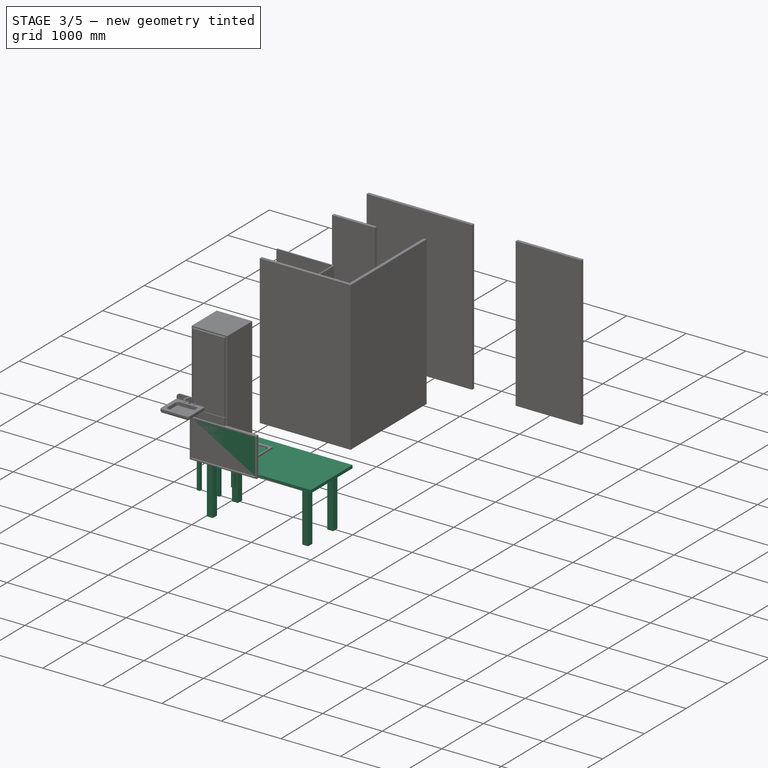
[diagram: stage 3 of 5 — iso view after this stage's code; geometry added in this stage tinted green]
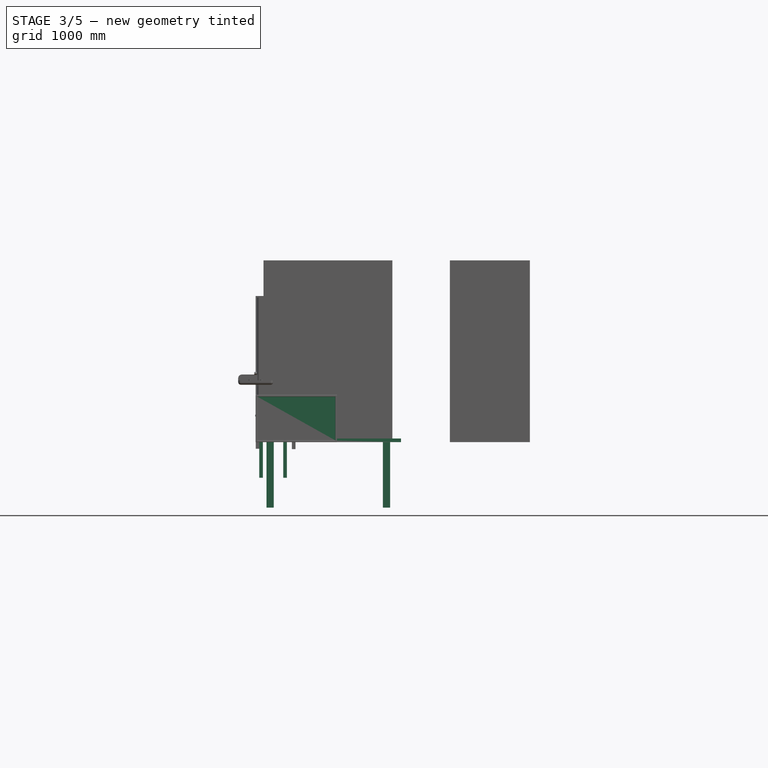
[diagram: stage 3 of 5 — front view after this stage's code; geometry added in this stage tinted green]
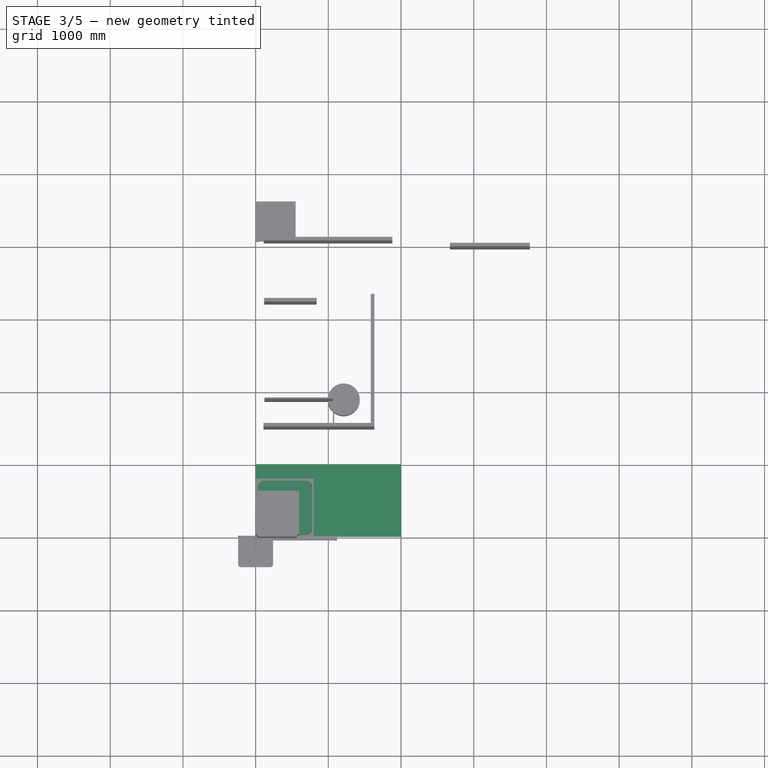
[diagram: stage 3 of 5 — top view after this stage's code; geometry added in this stage tinted green]
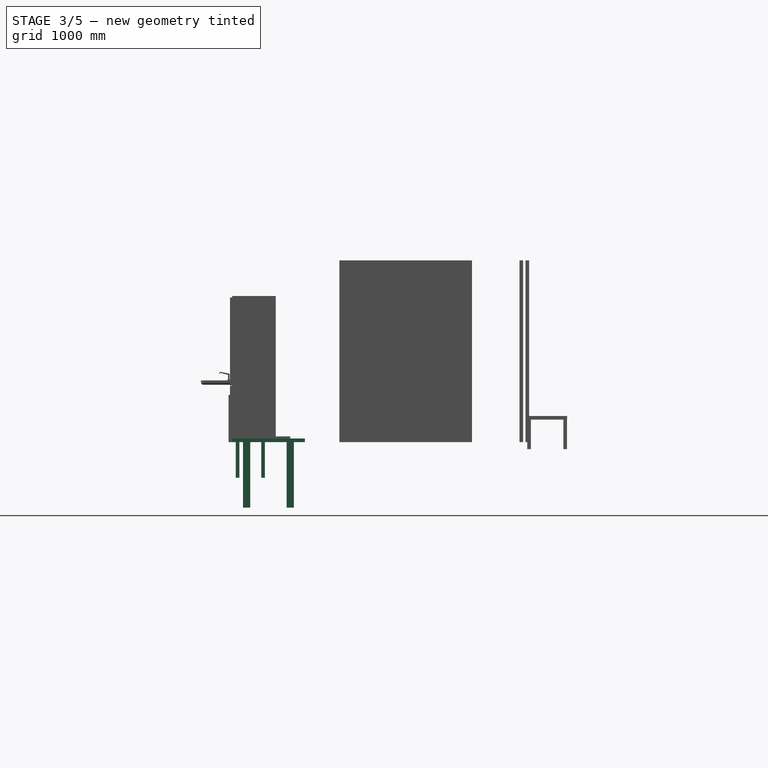
[diagram: stage 3 of 5 — right view after this stage's code; geometry added in this stage tinted green]
FEATURE [PartDesign::Body] Body001  label="LaundryMachine_600mm"
  Group = -> [Sketch004,Pad,Sketch005,Pocket,Sketch006,Pad001,Sketch007,Pad002,Sketch008,Pocket001,Fillet003,Sketch009,Pocket002,Fillet004,Sketch010,Pad003,Fillet005,Fillet006,Fillet007,Fillet008,Fillet009]
  Origin = -> Origin001
  Placement = pos=(1.5e-13,3896,0) rot=(0,0,-1;1.5708rad)
  Tip = -> Fillet009
FEATURE [Sketcher::SketchObject] Sketch011
  FullyConstrained = false
  MapMode = 5
  Support = -> [XY_Plane002]
  sketch-geometry (4):
    g0: LineSegment StartX=0 StartY=0 StartZ=0 EndX=2000 EndY=0 EndZ=0
    g1: LineSegment StartX=2000 StartY=0 StartZ=0 EndX=2000 EndY=1000 EndZ=0
    g2: LineSegment StartX=2000 StartY=1000 StartZ=0 EndX=0 EndY=1000 EndZ=0
    g3: LineSegment StartX=0 StartY=1000 StartZ=0 EndX=0 EndY=0 EndZ=0
  constraints (11):
    c: Coincident(g0,g1)
    c: Coincident(g1,g2)
    c: Coincident(g2,g3)
    c: Coincident(g3,g0)
    c: Horizontal(g0)
    c: Horizontal(g2)
    c: Vertical(g1)
    c: Vertical(g3)
    c: Coincident(g0,g-1)
    c: DistanceY(g1,g1) = 1000
    c: DistanceX(g0,g0) = 2000
FEATURE [PartDesign::Pad] Pad004
  AllowMultiFace = false
  Direction = (1,1,1)
  Length = 50
  Length2 = 100
  Profile = -> Sketch011
  Type = 0
FEATURE [Sketcher::SketchObject] Sketch012
  FullyConstrained = false
  MapMode = 5
  Placement = pos=(0,0,0) rot=(1,0,0;3.14159rad)
  Support = -> [Pad004]
  sketch-geometry (4):
    g0: LineSegment StartX=150 StartY=-150 StartZ=0 EndX=250 EndY=-150 EndZ=0
    g1: LineSegment StartX=250 StartY=-150 StartZ=0 EndX=250 EndY=-250 EndZ=0
    g2: LineSegment StartX=250 StartY=-250 StartZ=0 EndX=150 EndY=-250 EndZ=0
    g3: LineSegment StartX=150 StartY=-250 StartZ=0 EndX=150 EndY=-150 EndZ=0
  constraints (12):
    c: Coincident(g0,g1)
    c: Coincident(g1,g2)
    c: Coincident(g2,g3)
    c: Coincident(g3,g0)
    c: Horizontal(g0)
    c: Horizontal(g2)
    c: Vertical(g1)
    c: Vertical(g3)
    c: DistanceY(g3,g3) = 100
    c: DistanceX(g0,g0) = 100
    c: DistanceX(g0) = 150
    c: DistanceY(g0) = -150
FEATURE [PartDesign::Pad] Pad005
  AllowMultiFace = false
  BaseFeature = -> Pad004
  Direction = (1,1,1)
  Length = 900
  Length2 = 100
  Profile = -> Sketch012
  Type = 0
FEATURE [Sketcher::SketchObject] Sketch013
  FullyConstrained = false
  MapMode = 5
  Placement = pos=(0,0,0) rot=(1,0,0;3.14159rad)
  Support = -> [Pad005]
  sketch-geometry (4):
    g0: LineSegment StartX=1750 StartY=-150 StartZ=0 EndX=1850 EndY=-150 EndZ=0
    g1: LineSegment StartX=1850 StartY=-150 StartZ=0 EndX=1850 EndY=-250 EndZ=0
    g2: LineSegment StartX=1850 StartY=-250 StartZ=0 EndX=1750 EndY=-250 EndZ=0
    g3: LineSegment StartX=1750 StartY=-250 StartZ=0 EndX=1750 EndY=-150 EndZ=0
  constraints (12):
    c: Coincident(g0,g1)
    c: Coincident(g1,g2)
    c: Coincident(g2,g3)
    c: Coincident(g3,g0)
    c: Horizontal(g0)
    c: Horizontal(g2)
    c: Vertical(g1)
    c: Vertical(g3)
    c: DistanceX(g0,g0) = 100
    c: DistanceY(g1,g1) = 100
    c: DistanceX(g0) = 1850
    c: DistanceY(g0) = -150
FEATURE [PartDesign::Pad] Pad006
  AllowMultiFace = false
  BaseFeature = -> Pad005
  Direction = (1,1,1)
  Length = 900
  Length2 = 100
  Profile = -> Sketch013
  Type = 0
FEATURE [Sketcher::SketchObject] Sketch014
  FullyConstrained = false
  MapMode = 5
  Placement = pos=(0,0,0) rot=(1,0,0;3.14159rad)
  Support = -> [Pad006]
  sketch-geometry (4):
    g0: LineSegment StartX=150 StartY=-750 StartZ=0 EndX=250 EndY=-750 EndZ=0
    g1: LineSegment StartX=250 StartY=-750 StartZ=0 EndX=250 EndY=-850 EndZ=0
    g2: LineSegment StartX=250 StartY=-850 StartZ=0 EndX=150 EndY=-850 EndZ=0
    g3: LineSegment StartX=150 StartY=-850 StartZ=0 EndX=150 EndY=-750 EndZ=0
  constraints (12):
    c: Coincident(g0,g1)
    c: Coincident(g1,g2)
    c: Coincident(g2,g3)
    c: Coincident(g3,g0)
    c: Horizontal(g0)
    c: Horizontal(g2)
    c: Vertical(g1)
    c: Vertical(g3)
    c: DistanceX(g0,g0) = 100
    c: DistanceY(g3,g3) = 100
    c: DistanceX(g2) = 150
    c: DistanceY(g2) = -850
FEATURE [PartDesign::Pad] Pad007
  AllowMultiFace = false
  BaseFeature = -> Pad006
  Direction = (1,1,1)
  Length = 900
  Length2 = 100
  Profile = -> Sketch014
  Type = 0
FEATURE [Sketcher::SketchObject] Sketch015
  FullyConstrained = false
  MapMode = 5
  Placement = pos=(0,0,0) rot=(1,0,0;3.14159rad)
  Support = -> [Pad007]
  sketch-geometry (4):
    g0: LineSegment StartX=1750 StartY=-750 StartZ=0 EndX=1850 EndY=-750 EndZ=0
    g1: LineSegment StartX=1850 StartY=-750 StartZ=0 EndX=1850 EndY=-850 EndZ=0
    g2: LineSegment StartX=1850 StartY=-850 StartZ=0 EndX=1750 EndY=-850 EndZ=0
    g3: LineSegment StartX=1750 StartY=-850 StartZ=0 EndX=1750 EndY=-750 EndZ=0
  constraints (12):
    c: Coincident(g0,g1)
    c: Coincident(g1,g2)
    c: Coincident(g2,g3)
    c: Coincident(g3,g0)
    c: Horizontal(g0)
    c: Horizontal(g2)
    c: Vertical(g1)
    c: Vertical(g3)
    c: DistanceX(g0,g0) = 100
    c: DistanceY(g1,g1) = 100
    c: DistanceX(g1) = 1850
    c: DistanceY(g1) = -850
FEATURE [PartDesign::Pad] Pad008
  AllowMultiFace = false
  BaseFeature = -> Pad007
  Direction = (1,1,1)
  Length = 900
  Length2 = 100
  Profile = -> Sketch015
  Type = 0
FEATURE [PartDesign::Body] Body002  label="GenericTable_1x2m"
  Group = -> [Sketch011,Pad004,Sketch012,Pad005,Sketch013,Pad006,Sketch014,Pad007,Sketch015,Pad008,Fillet010]
  Origin = -> Origin002
  Placement = pos=(2442,3237,778) rot=(0,0,-1;1.5708rad)
  Tip = -> Fillet010
FEATURE [Sketcher::SketchObject] Sketch619
  FullyConstrained = false
  MapMode = 5
  Support = -> [XY_Plane126]
  sketch-geometry (4):
    g0: LineSegment StartX=0 StartY=0 StartZ=0 EndX=480 EndY=0 EndZ=0
    g1: LineSegment StartX=480 StartY=0 StartZ=0 EndX=480 EndY=500 EndZ=0
    g2: LineSegment StartX=480 StartY=500 StartZ=0 EndX=0 EndY=500 EndZ=0
    g3: LineSegment StartX=0 StartY=500 StartZ=0 EndX=0 EndY=0 EndZ=0
  constraints (11):
    c: Coincident(g0,g1)
    c: Coincident(g1,g2)
    c: Coincident(g2,g3)
    c: Coincident(g3,g0)
    c: Horizontal(g0)
    c: Horizontal(g2)
    c: Vertical(g1)
    c: Vertical(g3)
    c: Coincident(g0,g-1)
    c: DistanceY(g1,g1) = 500
    c: DistanceX(g0,g0) = 480
FEATURE [PartDesign::Pad] Pad295
  AllowMultiFace = false
  Direction = (1,1,1)
  Length = 70
  Length2 = 100
  Profile = -> Sketch619
  Type = 0
FEATURE [Sketcher::SketchObject] Sketch623
  FullyConstrained = false
  MapMode = 5
  Placement = pos=(0,0,70) rot=(0,0,1;0rad)
  Support = -> [Pad295]
  sketch-geometry (4):
    g0: LineSegment StartX=0 StartY=500 StartZ=0 EndX=480 EndY=500 EndZ=0
    g1: LineSegment StartX=480 StartY=500 StartZ=0 EndX=480 EndY=430 EndZ=0
    g2: LineSegment StartX=480 StartY=430 StartZ=0 EndX=0 EndY=430 EndZ=0
    g3: LineSegment StartX=0 StartY=430 StartZ=0 EndX=0 EndY=500 EndZ=0
  constraints (12):
    c: Coincident(g0,g1)
    c: Coincident(g1,g2)
    c: Coincident(g2,g3)
    c: Coincident(g3,g0)
    c: Horizontal(g0)
    c: Horizontal(g2)
    c: Vertical(g1)
    c: Vertical(g3)
    c: DistanceX(g0,g0) = 480
    c: DistanceY(g3,g3) = 70
    c: DistanceX(g0) = 0
    c: DistanceY(g0) = 500
FEATURE [PartDesign::Pad] Pad298
  AllowMultiFace = false
  BaseFeature = -> Pad295
  Direction = (1,1,1)
  Length = 500
  Length2 = 100
  Profile = -> Sketch623
  Type = 0
FEATURE [Sketcher::SketchObject] Sketch620
  FullyConstrained = false
  MapMode = 5
  Placement = pos=(0,0,0) rot=(1,0,0;3.14159rad)
  Support = -> [Pad298]
  sketch-geometry (4):
    g0: LineSegment StartX=50 StartY=-50 StartZ=0 EndX=100 EndY=-50 EndZ=0
    g1: LineSegment StartX=100 StartY=-50 StartZ=0 EndX=100 EndY=-100 EndZ=0
    g2: LineSegment StartX=100 StartY=-100 StartZ=0 EndX=50 EndY=-100 EndZ=0
    g3: LineSegment StartX=50 StartY=-100 StartZ=0 EndX=50 EndY=-50 EndZ=0
  constraints (12):
    c: Coincident(g0,g1)
    c: Coincident(g1,g2)
    c: Coincident(g2,g3)
    c: Coincident(g3,g0)
    c: Horizontal(g0)
    c: Horizontal(g2)
    c: Vertical(g1)
    c: Vertical(g3)
    c: Equal(g2,g3)
    c: DistanceX(g2,g2) = 50
    c: DistanceY(g0) = -50
    c: DistanceX(g0) = 50
FEATURE [PartDesign::Pad] Pad294
  AllowMultiFace = false
  BaseFeature = -> Pad298
  Direction = (1,1,1)
  Length = 490
  Length2 = 100
  Profile = -> Sketch620
  Type = 0
FEATURE [Sketcher::SketchObject] Sketch622
  FullyConstrained = false
  MapMode = 5
  Placement = pos=(0,0,0) rot=(1,0,0;3.14159rad)
  Support = -> [Pad294]
  sketch-geometry (4):
    g0: LineSegment StartX=380 StartY=-50 StartZ=0 EndX=430 EndY=-50 EndZ=0
    g1: LineSegment StartX=430 StartY=-50 StartZ=0 EndX=430 EndY=-100 EndZ=0
    g2: LineSegment StartX=430 StartY=-100 StartZ=0 EndX=380 EndY=-100 EndZ=0
    g3: LineSegment StartX=380 StartY=-100 StartZ=0 EndX=380 EndY=-50 EndZ=0
  constraints (12):
    c: Coincident(g0,g1)
    c: Coincident(g1,g2)
    c: Coincident(g2,g3)
    c: Coincident(g3,g0)
    c: Horizontal(g0)
    c: Horizontal(g2)
    c: Vertical(g1)
    c: Vertical(g3)
    c: Equal(g2,g3)
    c: DistanceX(g2,g2) = 50
    c: DistanceY(g0) = -50
    c: DistanceX(g0) = 430
FEATURE [PartDesign::Pad] Pad293
  AllowMultiFace = false
  BaseFeature = -> Pad294
  Direction = (1,1,1)
  Length = 490
  Length2 = 100
  Profile = -> Sketch622
  Type = 0
FEATURE [Sketcher::SketchObject] Sketch621
  FullyConstrained = false
  MapMode = 5
  Placement = pos=(0,0,0) rot=(1,0,0;3.14159rad)
  Support = -> [Pad293]
  sketch-geometry (4):
    g0: LineSegment StartX=50 StartY=-400 StartZ=0 EndX=100 EndY=-400 EndZ=0
    g1: LineSegment StartX=100 StartY=-400 StartZ=0 EndX=100 EndY=-450 EndZ=0
    g2: LineSegment StartX=100 StartY=-450 StartZ=0 EndX=50 EndY=-450 EndZ=0
    g3: LineSegment StartX=50 StartY=-450 StartZ=0 EndX=50 EndY=-400 EndZ=0
  constraints (12):
    c: Coincident(g0,g1)
    c: Coincident(g1,g2)
    c: Coincident(g2,g3)
    c: Coincident(g3,g0)
    c: Horizontal(g0)
    c: Horizontal(g2)
    c: Vertical(g1)
    c: Vertical(g3)
    c: Equal(g2,g3)
    c: DistanceX(g2,g2) = 50
    c: DistanceX(g2) = 50
    c: DistanceY(g2) = -450
FEATURE [PartDesign::Pad] Pad296
  AllowMultiFace = false
  BaseFeature = -> Pad293
  Direction = (1,1,1)
  Length = 490
  Length2 = 100
  Profile = -> Sketch621
  Type = 0
FEATURE [Sketcher::SketchObject] Sketch624
  FullyConstrained = false
  MapMode = 5
  Placement = pos=(0,0,0) rot=(1,0,0;3.14159rad)
  Support = -> [Pad296]
  sketch-geometry (4):
    g0: LineSegment StartX=380 StartY=-400 StartZ=0 EndX=430 EndY=-400 EndZ=0
    g1: LineSegment StartX=430 StartY=-400 StartZ=0 EndX=430 EndY=-450 EndZ=0
    g2: LineSegment StartX=430 StartY=-450 StartZ=0 EndX=380 EndY=-450 EndZ=0
    g3: LineSegment StartX=380 StartY=-450 StartZ=0 EndX=380 EndY=-400 EndZ=0
  constraints (12):
    c: Coincident(g0,g1)
    c: Coincident(g1,g2)
    c: Coincident(g2,g3)
    c: Coincident(g3,g0)
    c: Horizontal(g0)
    c: Horizontal(g2)
    c: Vertical(g1)
    c: Vertical(g3)
    c: Equal(g2,g3)
    c: DistanceX(g2,g2) = 50
    c: DistanceX(g1) = 430
    c: DistanceY(g1) = -450
FEATURE [PartDesign::Pad] Pad297
  AllowMultiFace = false
  BaseFeature = -> Pad296
  Direction = (1,1,1)
  Length = 490
  Length2 = 100
  Profile = -> Sketch624
  Type = 0
FEATURE [PartDesign::Fillet] Fillet207
  Base = -> Pad297 [Edge70]
  BaseFeature = -> Pad297
  Radius = 50
  SupportTransform = false
  UseAllEdges = false
FEATURE [PartDesign::Fillet] Fillet208
  Base = -> Fillet207 [Edge21,Edge20,Edge14]
  BaseFeature = -> Fillet207
  Radius = 30
  SupportTransform = false
  UseAllEdges = false
FEATURE [PartDesign::Fillet] Fillet209
  Base = -> Fillet208 [Edge4,Edge26,Edge6,Edge27]
  BaseFeature = -> Fillet208
  Radius = 30
  SupportTransform = false
  UseAllEdges = false
FEATURE [Sketcher::SketchObject] Sketch626
  FullyConstrained = false
  MapMode = 5
  Placement = pos=(0,-50,2.21e-14) rot=(1,0,0;1.5708rad)
  Support = -> [Pad299]
  sketch-geometry (4):
    g0: LineSegment StartX=25 StartY=625 StartZ=0 EndX=1095 EndY=625 EndZ=0
    g1: LineSegment StartX=1095 StartY=625 StartZ=0 EndX=1095 EndY=25 EndZ=0
    g2: LineSegment StartX=1095 StartY=25 StartZ=0 EndX=25 EndY=25 EndZ=0
    g3: LineSegment StartX=25 StartY=25 StartZ=0 EndX=25 EndY=625 EndZ=0
  constraints (12):
    c: Coincident(g0,g1)
    c: Coincident(g1,g2)
    c: Coincident(g2,g3)
    c: Coincident(g3,g0)
    c: Horizontal(g0)
    c: Horizontal(g2)
    c: Vertical(g1)
    c: Vertical(g3)
    c: DistanceY(g3,g3) = 600
    c: DistanceX(g2,g2) = 1070
    c: DistanceX(g2) = 25
    c: DistanceY(g2) = 25
FEATURE [PartDesign::Pocket] Pocket007
  AllowMultiFace = false
  BaseFeature = -> Pad299
  Direction = (1,1,1)
  Length = 20
  Length2 = 100
  Placement = pos=(0,0,0) rot=(1,0,0;1.5708rad)
  Profile = -> Sketch626
  Type = 0
FEATURE [PartDesign::Fillet] Fillet210
  Base = -> Pocket007 [Face5]
  BaseFeature = -> Pocket007
  Placement = pos=(0,0,0) rot=(1,0,0;1.5708rad)
  Radius = 5
  SupportTransform = false
  UseAllEdges = false
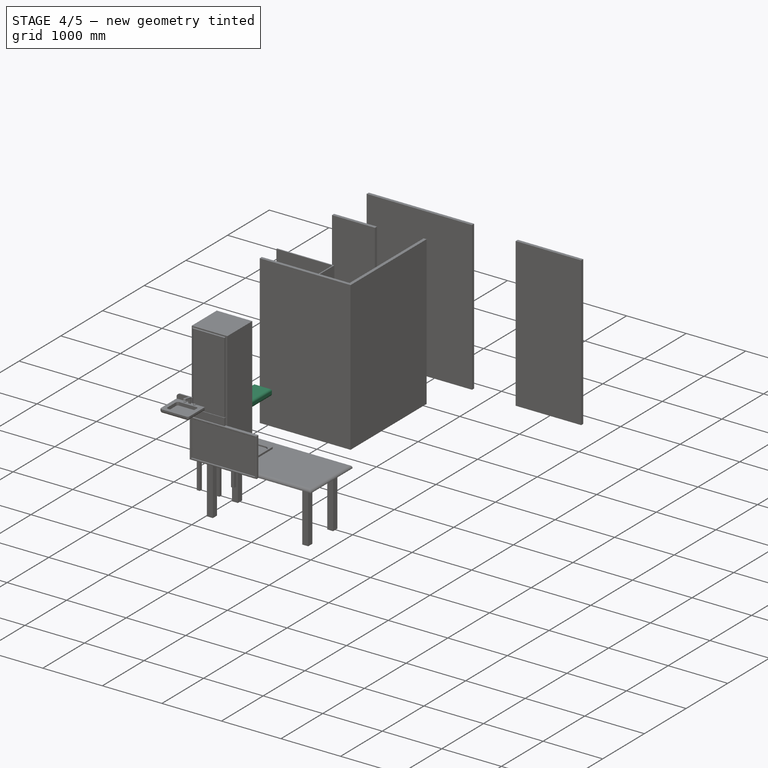
[diagram: stage 4 of 5 — iso view after this stage's code; geometry added in this stage tinted green]
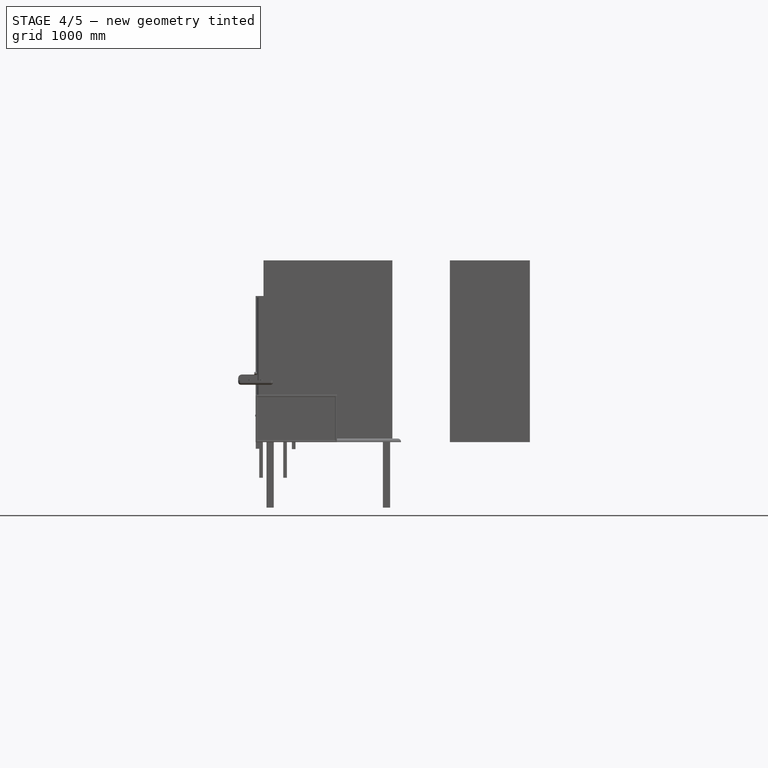
[diagram: stage 4 of 5 — front view after this stage's code; geometry added in this stage tinted green]
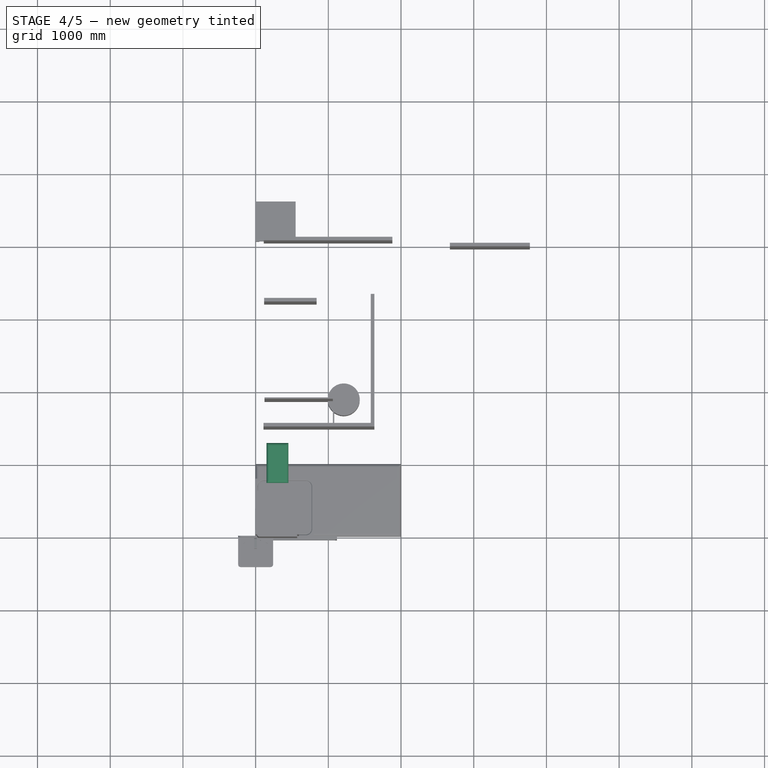
[diagram: stage 4 of 5 — top view after this stage's code; geometry added in this stage tinted green]
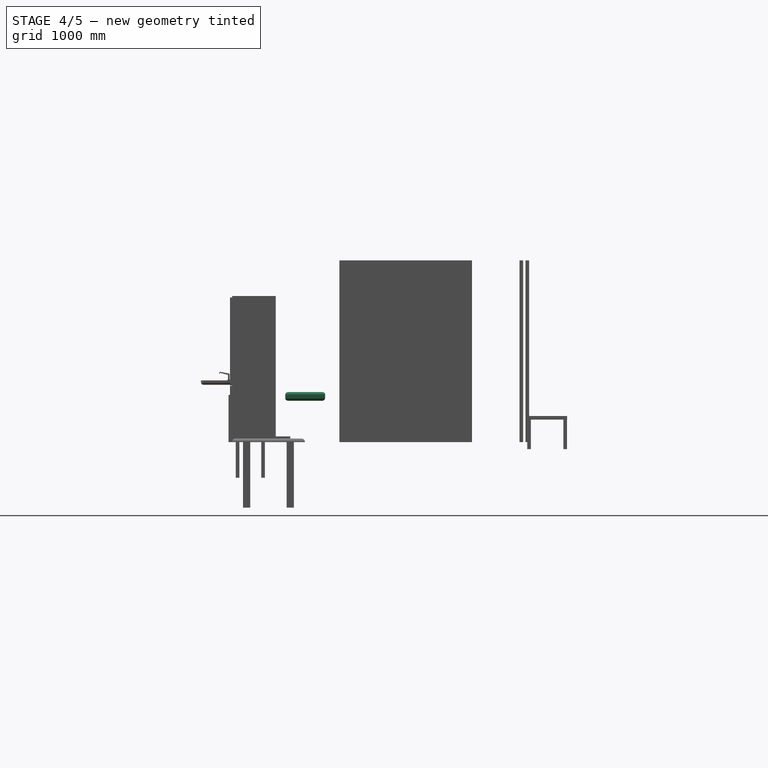
[diagram: stage 4 of 5 — right view after this stage's code; geometry added in this stage tinted green]
FEATURE [Part::Box] Box008  label="Cube008"
  AttacherType = Attacher::AttachEngine3D
  Height = 120
  Length = 300
  Placement = pos=(150,730,570) rot=(0,0,1;0rad)
  Width = 550
FEATURE [Part::Fillet] Fillet002
  Base = -> Box008
  Edges = 8 edges r=40: [Edge2,Edge4,Edge6,Edge8,Edge9,Edge10,Edge11,Edge12]
FEATURE [Sketcher::SketchObject] Sketch004
  FullyConstrained = false
  MapMode = 5
  Support = -> [XY_Plane001]
  sketch-geometry (4):
    g0: LineSegment StartX=0 StartY=0 StartZ=0 EndX=596 EndY=0 EndZ=0
    g1: LineSegment StartX=596 StartY=0 StartZ=0 EndX=596 EndY=541 EndZ=0
    g2: LineSegment StartX=596 StartY=541 StartZ=0 EndX=0 EndY=541 EndZ=0
    g3: LineSegment StartX=0 StartY=541 StartZ=0 EndX=0 EndY=0 EndZ=0
  constraints (11):
    c: Coincident(g0,g1)
    c: Coincident(g1,g2)
    c: Coincident(g2,g3)
    c: Coincident(g3,g0)
    c: Horizontal(g0)
    c: Horizontal(g2)
    c: Vertical(g1)
    c: Vertical(g3)
    c: Coincident(g0,g-1)
    c: DistanceY(g1,g1) = 541
    c: DistanceX(g0,g0) = 596
FEATURE [PartDesign::Pad] Pad
  AllowMultiFace = false
  Direction = (1,1,1)
  Length = 820
  Length2 = 100
  Profile = -> Sketch004
  Type = 0
FEATURE [Sketcher::SketchObject] Sketch005
  FullyConstrained = false
  MapMode = 5
  Placement = pos=(0,541,0) rot=(0,0.707107,0.707107;3.14159rad)
  Support = -> [Pad]
  sketch-geometry (4):
    g0: LineSegment StartX=0 StartY=0 StartZ=0 EndX=-596 EndY=0 EndZ=0
    g1: LineSegment StartX=-596 StartY=0 StartZ=0 EndX=-596 EndY=170 EndZ=0
    g2: LineSegment StartX=-596 StartY=170 StartZ=0 EndX=0 EndY=170 EndZ=0
    g3: LineSegment StartX=0 StartY=170 StartZ=0 EndX=0 EndY=0 EndZ=0
  constraints (11):
    c: Coincident(g0,g1)
    c: Coincident(g1,g2)
    c: Coincident(g2,g3)
    c: Coincident(g3,g0)
    c: Horizontal(g0)
    c: Horizontal(g2)
    c: Vertical(g1)
    c: Vertical(g3)
    c: Coincident(g0,g-1)
    c: DistanceX(g0,g0) = 596
    c: DistanceY(g1,g1) = 170
FEATURE [PartDesign::Pocket] Pocket
  AllowMultiFace = false
  BaseFeature = -> Pad
  Direction = (1,1,1)
  Length = 90
  Length2 = 100
  Profile = -> Sketch005
  Type = 0
FEATURE [Sketcher::SketchObject] Sketch006
  FullyConstrained = false
  MapMode = 5
  Placement = pos=(0,541,0) rot=(0,0.707107,0.707107;3.14159rad)
  Support = -> [Pocket]
  sketch-geometry (1):
    g0: Circle CenterX=-298 CenterY=450 CenterZ=0 NormalX=0 NormalY=0 NormalZ=1 AngleXU=0 Radius=180
  constraints (3):
    c: Radius(g0) = 180
    c: DistanceX(g0) = -298
    c: DistanceY(g0) = 450
FEATURE [PartDesign::Pad] Pad001
  AllowMultiFace = false
  BaseFeature = -> Pocket
  Direction = (1,1,1)
  Length = 50
  Length2 = 100
  Profile = -> Sketch006
  Type = 0
FEATURE [Sketcher::SketchObject] Sketch007
  FullyConstrained = false
  MapMode = 5
  Placement = pos=(0,541,0) rot=(0,0.707107,0.707107;3.14159rad)
  Support = -> [Pad001]
  sketch-geometry (4):
    g0: LineSegment StartX=-596 StartY=820 StartZ=0 EndX=0 EndY=820 EndZ=0
    g1: LineSegment StartX=0 StartY=820 StartZ=0 EndX=0 EndY=700 EndZ=0
    g2: LineSegment StartX=0 StartY=700 StartZ=0 EndX=-596 EndY=700 EndZ=0
    g3: LineSegment StartX=-596 StartY=700 StartZ=0 EndX=-596 EndY=820 EndZ=0
  constraints (12):
    c: Coincident(g0,g1)
    c: Coincident(g1,g2)
    c: Coincident(g2,g3)
    c: Coincident(g3,g0)
    c: Horizontal(g0)
    c: Horizontal(g2)
    c: Vertical(g1)
    c: Vertical(g3)
    c: DistanceX(g2,g2) = 596
    c: DistanceY(g1,g1) = 120
    c: DistanceX(g1) = 0
    c: DistanceY(g1) = 700
FEATURE [PartDesign::Pad] Pad002
  AllowMultiFace = false
  BaseFeature = -> Pad001
  Direction = (1,1,1)
  Length = 30
  Length2 = 100
  Profile = -> Sketch007
  Type = 0
FEATURE [Sketcher::SketchObject] Sketch008
  FullyConstrained = false
  MapMode = 5
  Placement = pos=(0,591,0) rot=(0,0.707107,0.707107;3.14159rad)
  Support = -> [Pad002]
  sketch-geometry (1):
    g0: Circle CenterX=-298 CenterY=450 CenterZ=0 NormalX=0 NormalY=0 NormalZ=1 AngleXU=0 Radius=150
  constraints (3):
    c: Radius(g0) = 150
    c: DistanceX(g0) = -298
    c: DistanceY(g0) = 450
FEATURE [PartDesign::Pocket] Pocket001
  AllowMultiFace = false
  BaseFeature = -> Pad002
  Direction = (1,1,1)
  Length = 30
  Length2 = 100
  Profile = -> Sketch008
  Type = 0
FEATURE [PartDesign::Fillet] Fillet003
  Base = -> Pocket001 [Face15]
  BaseFeature = -> Pocket001
  Radius = 13
  SupportTransform = false
  UseAllEdges = false
FEATURE [Sketcher::SketchObject] Sketch009
  FullyConstrained = false
  MapMode = 5
  Placement = pos=(0,561,0) rot=(0,0.707107,0.707107;3.14159rad)
  Support = -> [Fillet003]
  sketch-geometry (1):
    g0: Circle CenterX=-298 CenterY=450 CenterZ=0 NormalX=0 NormalY=0 NormalZ=1 AngleXU=0 Radius=100
  constraints (3):
    c: Radius(g0) = 100
    c: DistanceX(g0) = -298
    c: DistanceY(g0) = 450
FEATURE [PartDesign::Pocket] Pocket002
  AllowMultiFace = false
  BaseFeature = -> Fillet003
  Direction = (1,1,1)
  Length = 100
  Length2 = 100
  Profile = -> Sketch009
  Type = 0
FEATURE [PartDesign::Fillet] Fillet004
  Base = -> Pocket002 [Edge40]
  BaseFeature = -> Pocket002
  Radius = 35
  SupportTransform = false
  UseAllEdges = false
FEATURE [Sketcher::SketchObject] Sketch010
  FullyConstrained = false
  MapMode = 5
  Placement = pos=(0,571,-5.424e-13) rot=(0,0.707107,0.707107;3.14159rad)
  Support = -> [Fillet004]
  sketch-geometry (2):
    g0: Circle CenterX=-100 CenterY=760 CenterZ=0 NormalX=0 NormalY=0 NormalZ=1 AngleXU=0 Radius=30
    g1: Circle CenterX=-230 CenterY=760 CenterZ=0 NormalX=0 NormalY=0 NormalZ=1 AngleXU=0 Radius=30
  constraints (6):
    c: Radius(g0) = 30
    c: DistanceX(g0) = -100
    c: DistanceY(g0) = 760
    c: Equal(g1,g0)
    c: DistanceY(g1) = 760
    c: DistanceX(g1) = -230
FEATURE [PartDesign::Pad] Pad003
  AllowMultiFace = false
  BaseFeature = -> Fillet004
  Direction = (1,1,1)
  Length = 20
  Length2 = 100
  Profile = -> Sketch010
  Type = 0
FEATURE [PartDesign::Fillet] Fillet005
  Base = -> Pad003 [Edge48]
  BaseFeature = -> Pad003
  Radius = 10
  SupportTransform = false
  UseAllEdges = false
FEATURE [PartDesign::Fillet] Fillet006
  Base = -> Fillet005 [Edge20]
  BaseFeature = -> Fillet005
  Radius = 10
  SupportTransform = false
  UseAllEdges = false
FEATURE [PartDesign::Fillet] Fillet007
  Base = -> Fillet006 [Edge9]
  BaseFeature = -> Fillet006
  Radius = 15
  SupportTransform = false
  UseAllEdges = false
FEATURE [PartDesign::Fillet] Fillet008
  Base = -> Fillet007 [Face29]
  BaseFeature = -> Fillet007
  Radius = 40
  SupportTransform = false
  UseAllEdges = false
FEATURE [PartDesign::Fillet] Fillet009
  Base = -> Fillet008 [Edge18]
  BaseFeature = -> Fillet008
  Radius = 10
  SupportTransform = false
  UseAllEdges = false
FEATURE [PartDesign::Fillet] Fillet010
  Base = -> Pad008 [Face5]
  BaseFeature = -> Pad008
  Radius = 45
  SupportTransform = false
  UseAllEdges = false
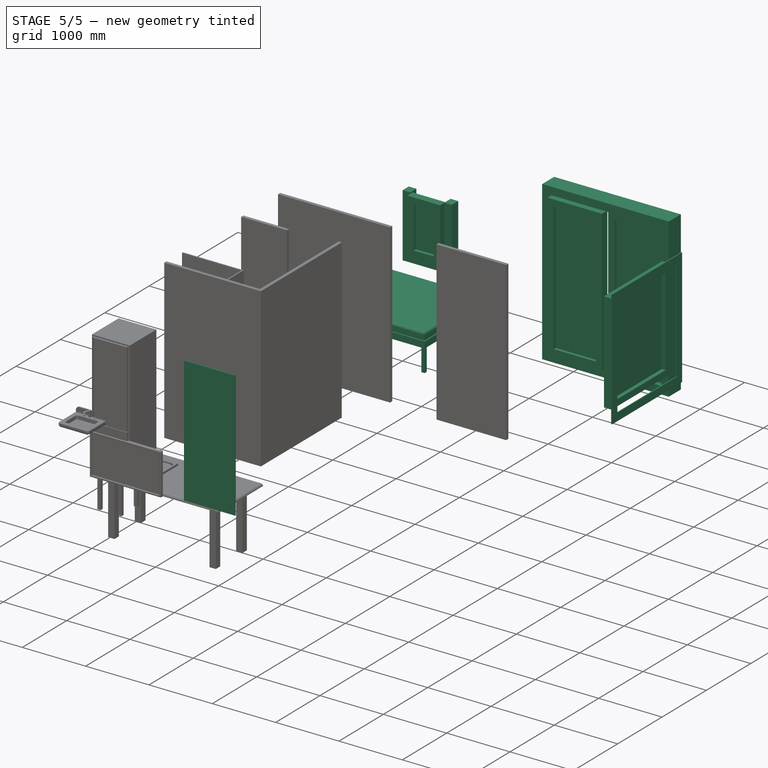
[diagram: stage 5 of 5 — iso view after this stage's code; geometry added in this stage tinted green]
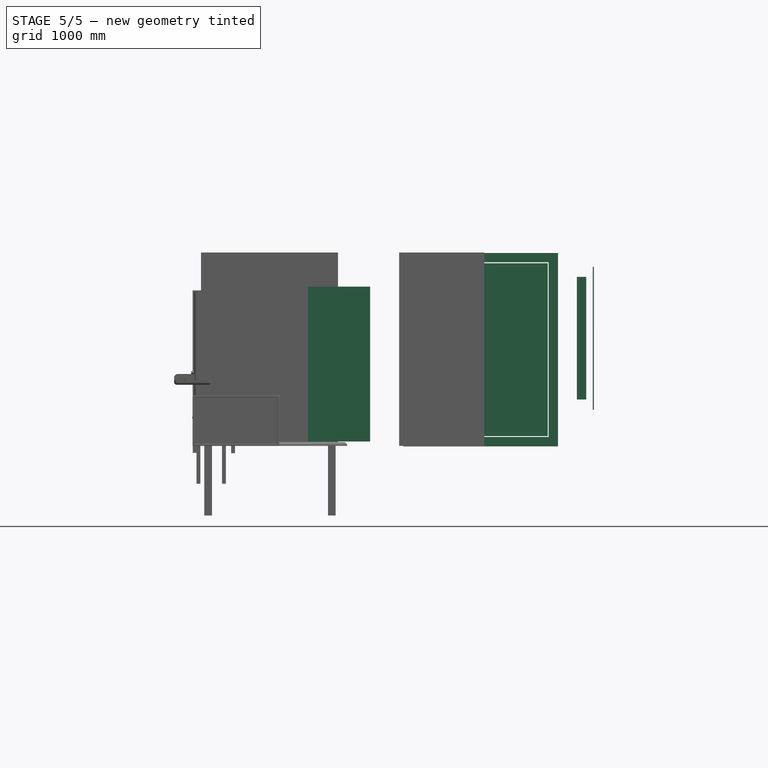
[diagram: stage 5 of 5 — front view after this stage's code; geometry added in this stage tinted green]
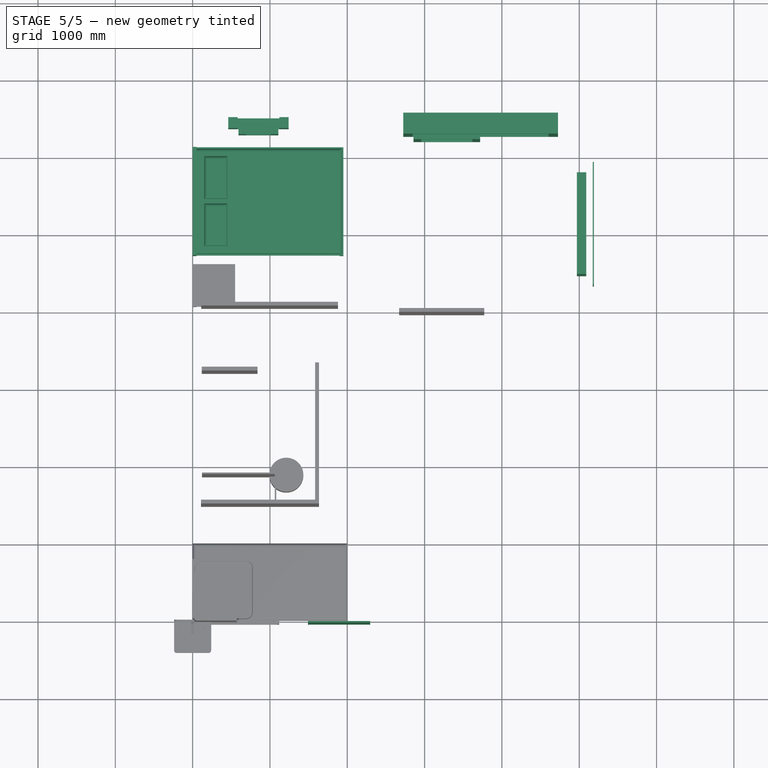
[diagram: stage 5 of 5 — top view after this stage's code; geometry added in this stage tinted green]
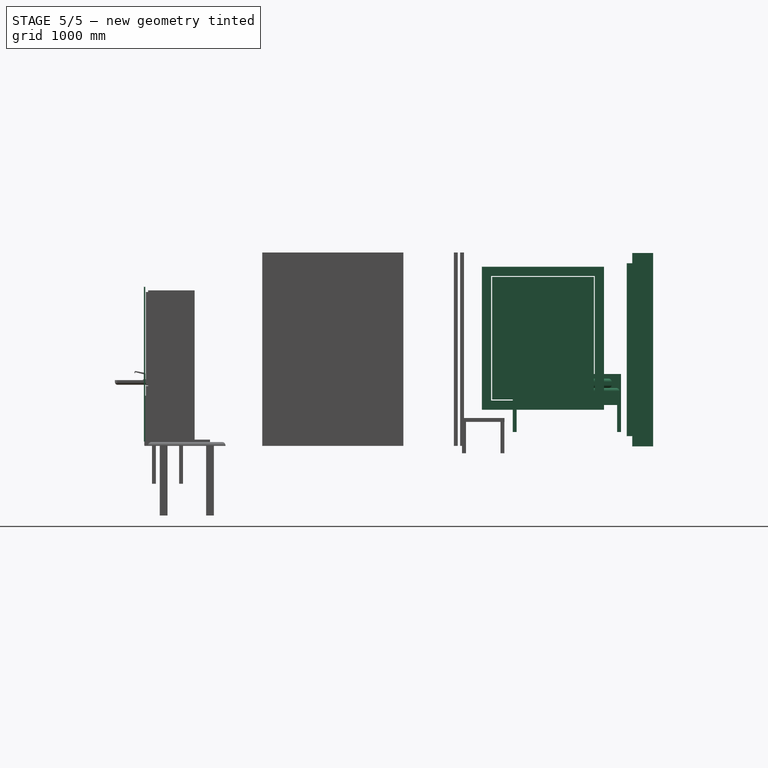
[diagram: stage 5 of 5 — right view after this stage's code; geometry added in this stage tinted green]
FEATURE [App::GeometryPython] BuildingPart  # Arch/BIM 172 (typed FeaturePython)
  Area = 0
  Height = 0
  HeightPropagate = true
  IfcData = attributes={"GlobalId": {"name": "GlobalId", "type": "IfcGloballyUniqueId", "is_enum": false, "enum_values": []}, "Description": {"... (+484 chars omitted),+1 more (map truncated)
  IfcType = 172
  LevelOffset = 0
  OnlySolids = true
  Placement = pos=(0,0,0) rot=(-0.095675,-0.029035,-0.994989;1.57914rad)
  PredefinedType = 0
FEATURE [Sketcher::SketchObject] Sketch  label="Murs"
  FullyConstrained = false
  MapMode = 5
  sketch-geometry (5):
    g0: LineSegment StartX=0 StartY=6420 StartZ=0 EndX=5090 EndY=6420 EndZ=0
    g1: LineSegment StartX=5090 StartY=6420 StartZ=0 EndX=5090 EndY=0 EndZ=0
    g2: LineSegment StartX=5090 StartY=0 StartZ=0 EndX=0 EndY=0 EndZ=0
    g3: LineSegment StartX=0 StartY=0 StartZ=0 EndX=0 EndY=6420 EndZ=0
    g4: LineSegment StartX=2750 StartY=6420 StartZ=0 EndX=2750 EndY=3970 EndZ=0
  constraints (14):
    c: Coincident(g0,g1)
    c: Coincident(g1,g2)
    c: Coincident(g2,g3)
    c: Coincident(g3,g0)
    c: Horizontal(g0)
    c: Horizontal(g2)
    c: Vertical(g1)
    c: Vertical(g3)
    c: Coincident(g2,g-1)
    c: DistanceY(g3,g3) = 6420
    c: DistanceX(g2,g2) = 5090
    c: PointOnObject(g4,g0)
    c: Vertical(g4)
    c: DistanceX(g4,g0) = 2340
FEATURE [Part::FeaturePython] Wall  label="Murs exterieurs"  # Arch/BIM 166 (typed FeaturePython)
  Align = 2
  Area = 63675000
  Base = -> Sketch
  BlockHeight = 0
  BlockLength = 0
  CountBroken = 0
  CountEntire = 0
  Face = 0
  Height = 2500
  HorizontalArea = 0
  IfcData = attributes={"GlobalId": {"name": "GlobalId", "type": "IfcGloballyUniqueId", "is_enum": false, "enum_values": []}, "Description": {"... (+533 chars omitted),+1 more (map truncated)
  IfcType = 166
  Joint = 0
  Length = 25470
  MakeBlocks = false
  MoveBase = false
  MoveWithHost = false
  Normal = (0,0,0)
  OffsetFirst = 0
  OffsetSecond = 0
  PerimeterLength = 0
  PredefinedType = 0
  VerticalArea = 0
  Width = 200
FEATURE [Sketcher::SketchObject] Sketch001
  FullyConstrained = true
  MapMode = 5
  Placement = pos=(1493.93,-40,56.95) rot=(1,0,0;1.5708rad)
  sketch-geometry (12):
    g0: LineSegment StartX=0 StartY=0 StartZ=0 EndX=800 EndY=0 EndZ=0
    g1: LineSegment StartX=800 StartY=0 StartZ=0 EndX=800 EndY=2000 EndZ=0
    g2: LineSegment StartX=800 StartY=2000 StartZ=0 EndX=0 EndY=2000 EndZ=0
    g3: LineSegment StartX=0 StartY=2000 StartZ=0 EndX=0 EndY=0 EndZ=0
    g4: LineSegment StartX=3.5 StartY=0 StartZ=0 EndX=796.5 EndY=0 EndZ=0
    g5: LineSegment StartX=796.5 StartY=0 StartZ=0 EndX=796.5 EndY=1996.5 EndZ=0
    g6: LineSegment StartX=796.5 StartY=1996.5 StartZ=0 EndX=3.5 EndY=1996.5 EndZ=0
    g7: LineSegment StartX=3.5 StartY=1996.5 StartZ=0 EndX=3.5 EndY=0 EndZ=0
    g8: LineSegment StartX=-2 StartY=0 StartZ=0 EndX=802 EndY=0 EndZ=0
    g9: LineSegment StartX=802 StartY=0 StartZ=0 EndX=802 EndY=2002 EndZ=0
    g10: LineSegment StartX=802 StartY=2002 StartZ=0 EndX=-2 EndY=2002 EndZ=0
    g11: LineSegment StartX=-2 StartY=2002 StartZ=0 EndX=-2 EndY=0 EndZ=0
  constraints (36):
    c: Coincident(g0,g1)
    c: Coincident(g1,g2)
    c: Coincident(g2,g3)
    c: Coincident(g3,g0)
    c: Horizontal(g0)
    c: Horizontal(g2)
    c: Vertical(g1)
    c: Vertical(g3)
    c: DistanceX(g0) = 0
    c: DistanceY(g0) = 0
    c: DistanceX(g0) = 800
    c: DistanceY(g1) = 2000
    c: Coincident(g4,g5)
    c: Coincident(g5,g6)
    c: Coincident(g6,g7)
    c: Coincident(g7,g4)
    c: Horizontal(g4)
    c: Horizontal(g6)
    c: Vertical(g5)
    c: Vertical(g7)
    c: DistanceY(g6,g2) = 3.5
    c: DistanceX(g6,g2) = -3.5
    c: DistanceX(g5,g1) = 3.5
    c: DistanceY(g4,g0) = 0
    c: Coincident(g8,g9)
    c: Coincident(g9,g10)
    c: Coincident(g10,g11)
    c: Coincident(g11,g8)
    c: Horizontal(g8)
    c: Horizontal(g10)
    c: Vertical(g9)
    c: Vertical(g11)
    c: DistanceX(g2,g10) = -2
    c: DistanceX(g1,g9) = 2
    c: DistanceY(g2,g10) = 2
    c: DistanceY(g8,g0) = 0
FEATURE [Part::FeaturePython] Window001  label="porte entree"  # Arch/BIM 0 (typed FeaturePython)
  Area = 1600000
  Base = -> Sketch001
  Frame = 0
  Height = 2000
  HoleDepth = 200
  HoleWire = 0
  HorizontalArea = 0
  Hosts = -> [Wall]
  IfcData = attributes={"GlobalId": {"name": "GlobalId", "type": "IfcGloballyUniqueId", "is_enum": false, "enum_values": []}, "Description": {"... (+532 chars omitted),+1 more (map truncated)
  IfcType = 0
  LouvreSpacing = 0
  LouvreWidth = 0
  MoveBase = false
  MoveWithHost = false
  Normal = (0,1,-2e-16)
  Opening = 0
  PerimeterLength = 0
  PredefinedType = 6
  Preset = 0
  SymbolElevation = false
  SymbolPlan = false
  VerticalArea = 0
  Width = 800
  WindowParts = Main frame | Frame | Wire0,Wire1 | -14 | 0 | Door sheet | Solid panel | Wire1 | 3 | -10 | Front finish | Frame | Wire1,Wire2 | 2 | -16 | Rear finish | Frame | Wire1,Wire2 | 2 | 0
FEATURE [Sketcher::SketchObject] Sketch002
  FullyConstrained = true
  Placement = pos=(4444.63,6530,773.94) rot=(0,0.707107,0.707107;3.14159rad)
  sketch-geometry (24):
    g0: LineSegment StartX=0 StartY=0 StartZ=0 EndX=2000 EndY=0 EndZ=0
    g1: LineSegment StartX=2000 StartY=0 StartZ=0 EndX=2000 EndY=2500 EndZ=0
    g2: LineSegment StartX=2000 StartY=2500 StartZ=0 EndX=0 EndY=2500 EndZ=0
    g3: LineSegment StartX=0 StartY=2500 StartZ=0 EndX=0 EndY=0 EndZ=0
    g4: LineSegment StartX=120 StartY=120 StartZ=0 EndX=1880 EndY=120 EndZ=0
    g5: LineSegment StartX=1880 StartY=120 StartZ=0 EndX=1880 EndY=2380 EndZ=0
    g6: LineSegment StartX=1880 StartY=2380 StartZ=0 EndX=120 EndY=2380 EndZ=0
    g7: LineSegment StartX=120 StartY=2380 StartZ=0 EndX=120 EndY=120 EndZ=0
    g8: LineSegment StartX=132 StartY=132 StartZ=0 EndX=994 EndY=132 EndZ=0
    g9: LineSegment StartX=994 StartY=132 StartZ=0 EndX=994 EndY=2368 EndZ=0
    g10: LineSegment StartX=994 StartY=2368 StartZ=0 EndX=132 EndY=2368 EndZ=0
    g11: LineSegment StartX=132 StartY=2368 StartZ=0 EndX=132 EndY=132 EndZ=0
    g12: LineSegment StartX=232 StartY=232 StartZ=0 EndX=894 EndY=232 EndZ=0
    g13: LineSegment StartX=894 StartY=232 StartZ=0 EndX=894 EndY=2268 EndZ=0
    g14: LineSegment StartX=894 StartY=2268 StartZ=0 EndX=232 EndY=2268 EndZ=0
    g15: LineSegment StartX=232 StartY=2268 StartZ=0 EndX=232 EndY=232 EndZ=0
    g16: LineSegment StartX=1006 StartY=132 StartZ=0 EndX=1868 EndY=132 EndZ=0
    g17: LineSegment StartX=1868 StartY=132 StartZ=0 EndX=1868 EndY=2368 EndZ=0
    g18: LineSegment StartX=1868 StartY=2368 StartZ=0 EndX=1006 EndY=2368 EndZ=0
    g19: LineSegment StartX=1006 StartY=2368 StartZ=0 EndX=1006 EndY=132 EndZ=0
    g20: LineSegment StartX=1106 StartY=232 StartZ=0 EndX=1768 EndY=232 EndZ=0
    g21: LineSegment StartX=1768 StartY=232 StartZ=0 EndX=1768 EndY=2268 EndZ=0
    g22: LineSegment StartX=1768 StartY=2268 StartZ=0 EndX=1106 EndY=2268 EndZ=0
    g23: LineSegment StartX=1106 StartY=2268 StartZ=0 EndX=1106 EndY=232 EndZ=0
  constraints (71):
    c: Coincident(g0,g1)
    c: Coincident(g1,g2)
    c: Coincident(g2,g3)
    c: Coincident(g3,g0)
    c: Horizontal(g0)
    c: Horizontal(g2)
    c: Vertical(g1)
    c: Vertical(g3)
    c: Coincident(g4,g5)
    c: Coincident(g5,g6)
    c: Coincident(g6,g7)
    c: Coincident(g7,g4)
    c: Horizontal(g4)
    c: Horizontal(g6)
    c: Vertical(g5)
    c: Vertical(g7)
    c: DistanceY(g1) = 2500  'Height'
    c: DistanceX(g0) = 2000  'Width'
    c: DistanceY(g6,g2) = 120  'Frame1'
    c: DistanceX(g2,g6) = 120  'Frame2'
    c: DistanceX(g4,g0) = 120  'Frame3'
    c: DistanceY(g0,g4) = 120  'Frame4'
    c: Coincident(g0,g-1)
    c: Coincident(g8,g9)
    c: Coincident(g9,g10)
    c: Coincident(g10,g11)
    c: Coincident(g11,g8)
    c: Horizontal(g8)
    c: Horizontal(g10)
    c: Vertical(g9)
    c: Vertical(g11)
    c: Coincident(g12,g13)
    c: Coincident(g13,g14)
    c: Coincident(g14,g15)
    c: Coincident(g15,g12)
    c: Horizontal(g12)
    c: Horizontal(g14)
    c: Vertical(g13)
    c: Vertical(g15)
    c: Coincident(g16,g17)
    c: Coincident(g17,g18)
    c: Coincident(g18,g19)
    c: Coincident(g19,g16)
    c: Horizontal(g16)
    c: Horizontal(g18)
    c: Vertical(g17)
    c: Vertical(g19)
    c: Coincident(g20,g21)
    c: Coincident(g21,g22)
    c: Coincident(g22,g23)
    c: Coincident(g23,g20)
    c: Horizontal(g20)
    c: Horizontal(g22)
    c: Vertical(g21)
    c: Vertical(g23)
    c: DistanceY(g8,g12) = 100
    c: DistanceX(g8,g12) = 100
    c: DistanceX(g21,g17) = 100
    c: DistanceY(g21,g17) = 100
    c: DistanceX(g16,g20) = 100
    c: DistanceX(g14,g10) = 100
    c: Equal(g22,g14)
    c: DistanceY(g8,g16) = 0
    c: DistanceY(g10,g18) = 0
    c: DistanceX(g4,g8) = 12
    c: DistanceY(g4,g8) = 12
    c: DistanceX(g6,g18) = -12
    c: DistanceY(g6,g18) = -12
    c: DistanceX(g9,g19) = 12
    c: PointOnObject(g13,g22)
    c: PointOnObject(g12,g20)
FEATURE [Part::FeaturePython] Window002  label="porte fenetre"  # Arch/BIM 170 (typed FeaturePython)
  Area = 5000000
  Base = -> Sketch002
  Frame = 120
  Height = 2500
  HoleDepth = 200
  HoleWire = 0
  HorizontalArea = 0
  Hosts = -> [Wall]
  IfcData = attributes={"GlobalId": {"name": "GlobalId", "type": "IfcGloballyUniqueId", "is_enum": false, "enum_values": []}, "Description": {"... (+1231 chars omitted),+1 more (map truncated)
  IfcType = 170
  LouvreSpacing = 0
  LouvreWidth = 0
  MoveBase = false
  MoveWithHost = true
  Normal = (0,-1,2e-16)
  Opening = 0
  OverallHeight = 2500
  OverallWidth = 2000
  PartitioningType = 0
  PerimeterLength = 0
  Placement = pos=(280,0,-780) rot=(0,0,1;0rad)
  PredefinedType = 0
  Preset = 5
  SymbolElevation = false
  SymbolPlan = false
  VerticalArea = 0
  Width = 2000
  WindowParts = OuterFrame | Frame | Wire0,Wire1 | 150.0+V | 0.0+V | LeftFrame | Frame | Wire2,Wire3 | 120.0 | 100.0+V | LeftGlass | Glass panel | Wire3 | 12.0 | 160.0+V | RightFrame | Frame | Wire4,Wire5 | 120.0 | 220.0+V | RightGlass | Glass panel | Wire5 | 12.0 | 280.0+V
  expr: OverallHeight = .Height.Value
  expr: OverallWidth = .Width.Value
FEATURE [Sketcher::SketchObject] Sketch003
  FullyConstrained = true
  Placement = pos=(5190,4696.09,746.79) rot=(0.57735,0.57735,0.57735;2.0944rad)
  sketch-geometry (16):
    g0: LineSegment StartX=0 StartY=0 StartZ=0 EndX=1580 EndY=0 EndZ=0
    g1: LineSegment StartX=1580 StartY=0 StartZ=0 EndX=1580 EndY=1850 EndZ=0
    g2: LineSegment StartX=1580 StartY=1850 StartZ=0 EndX=0 EndY=1850 EndZ=0
    g3: LineSegment StartX=0 StartY=1850 StartZ=0 EndX=0 EndY=0 EndZ=0
    g4: LineSegment StartX=120 StartY=120 StartZ=0 EndX=1460 EndY=120 EndZ=0
    g5: LineSegment StartX=1460 StartY=120 StartZ=0 EndX=1460 EndY=1730 EndZ=0
    g6: LineSegment StartX=1460 StartY=1730 StartZ=0 EndX=120 EndY=1730 EndZ=0
    g7: LineSegment StartX=120 StartY=1730 StartZ=0 EndX=120 EndY=120 EndZ=0
    g8: LineSegment StartX=132 StartY=132 StartZ=0 EndX=1448 EndY=132 EndZ=0
    g9: LineSegment StartX=1448 StartY=132 StartZ=0 EndX=1448 EndY=1718 EndZ=0
    g10: LineSegment StartX=1448 StartY=1718 StartZ=0 EndX=132 EndY=1718 EndZ=0
    g11: LineSegment StartX=132 StartY=1718 StartZ=0 EndX=132 EndY=132 EndZ=0
    g12: LineSegment StartX=232 StartY=232 StartZ=0 EndX=1348 EndY=232 EndZ=0
    g13: LineSegment StartX=1348 StartY=232 StartZ=0 EndX=1348 EndY=1618 EndZ=0
    g14: LineSegment StartX=1348 StartY=1618 StartZ=0 EndX=232 EndY=1618 EndZ=0
    g15: LineSegment StartX=232 StartY=1618 StartZ=0 EndX=232 EndY=232 EndZ=0
  constraints (47):
    c: Coincident(g0,g1)
    c: Coincident(g1,g2)
    c: Coincident(g2,g3)
    c: Coincident(g3,g0)
    c: Horizontal(g0)
    c: Horizontal(g2)
    c: Vertical(g1)
    c: Vertical(g3)
    c: Coincident(g4,g5)
    c: Coincident(g5,g6)
    c: Coincident(g6,g7)
    c: Coincident(g7,g4)
    c: Horizontal(g4)
    c: Horizontal(g6)
    c: Vertical(g5)
    c: Vertical(g7)
    c: DistanceY(g1) = 1850  'Height'
    c: DistanceX(g0) = 1580  'Width'
    c: DistanceY(g6,g2) = 120  'Frame1'
    c: DistanceX(g2,g6) = 120  'Frame2'
    c: DistanceX(g4,g0) = 120  'Frame3'
    c: DistanceY(g0,g4) = 120  'Frame4'
    c: Coincident(g0,g-1)
    c: Coincident(g8,g9)
    c: Coincident(g9,g10)
    c: Coincident(g10,g11)
    c: Coincident(g11,g8)
    c: Horizontal(g8)
    c: Horizontal(g10)
    c: Vertical(g9)
    c: Vertical(g11)
    c: Coincident(g12,g13)
    c: Coincident(g13,g14)
    c: Coincident(g14,g15)
    c: Coincident(g15,g12)
    c: Horizontal(g12)
    c: Horizontal(g14)
    c: Vertical(g13)
    c: Vertical(g15)
    c: DistanceX(g8,g12) = 100
    c: DistanceY(g8,g12) = 100
    c: DistanceX(g14,g10) = 100
    c: DistanceY(g14,g10) = 100
    c: DistanceX(g4,g8) = 12
    c: DistanceY(g4,g8) = 12
    c: DistanceX(g10,g6) = 12
    c: DistanceY(g10,g6) = 12
FEATURE [Part::FeaturePython] Window003  label="Fenetre fixe"  # Arch/BIM 170 (typed FeaturePython)
  Area = 2923000
  Base = -> Sketch003
  Frame = 0
  Height = 1850
  HoleDepth = 200
  HoleWire = 0
  HorizontalArea = 0
  Hosts = -> [Wall]
  IfcData = attributes={"GlobalId": {"name": "GlobalId", "type": "IfcGloballyUniqueId", "is_enum": false, "enum_values": []}, "Description": {"... (+1231 chars omitted),+1 more (map truncated)
  IfcType = 170
  LouvreSpacing = 0
  LouvreWidth = 0
  MoveBase = false
  MoveWithHost = true
  Normal = (-1,0,0)
  Opening = 0
  OverallHeight = 1850
  OverallWidth = 1580
  PartitioningType = 0
  PerimeterLength = 0
  Placement = pos=(0,-380,-280) rot=(0,0,1;0rad)
  PredefinedType = 0
  Preset = 9
  SymbolElevation = false
  SymbolPlan = false
  VerticalArea = 0
  Width = 1580
  WindowParts = OuterFrame | Frame | Wire0,Wire1 | 15.0+V | 0.0+V | InnerFrame | Frame | Wire2,Wire3,Edge7,Mode1 | 120.0 | 100.0+V | InnerGlass | Glass panel | Wire3 | 12.0 | 160.0+V
  expr: OverallHeight = .Height.Value
  expr: OverallWidth = .Width.Value
FEATURE [Part::Box] Box  label="Cube"
  AttacherType = Attacher::AttachEngine3D
  Height = 350
  Length = 50
  Placement = pos=(0,1350,0) rot=(0,0,1;0rad)
  Width = 50
FEATURE [Part::Box] Box001  label="Cube001"
  AttacherType = Attacher::AttachEngine3D
  Height = 350
  Length = 50
  Width = 50
FEATURE [Part::Box] Box002  label="Cube002"
  AttacherType = Attacher::AttachEngine3D
  Height = 350
  Length = 50
  Placement = pos=(1900,0,0) rot=(0,0,1;0rad)
  Width = 50
FEATURE [Part::Box] Box003  label="Cube003"
  AttacherType = Attacher::AttachEngine3D
  Height = 350
  Length = 50
  Placement = pos=(1900,1350,0) rot=(0,0,1;0rad)
  Width = 50
FEATURE [Part::Box] Box004  label="Cube004"
  AttacherType = Attacher::AttachEngine3D
  Height = 100
  Length = 1950
  Placement = pos=(0,0,350) rot=(0,0,1;0rad)
  Width = 1400
FEATURE [Part::Box] Box005  label="Cube005"
  AttacherType = Attacher::AttachEngine3D
  Height = 120
  Length = 1880
  Placement = pos=(50,20,450) rot=(0,0,1;0rad)
  Width = 1360
FEATURE [Part::Box] Box006  label="Cube006"
  AttacherType = Attacher::AttachEngine3D
  Height = 300
  Length = 50
  Placement = pos=(0,0,450) rot=(0,0,1;0rad)
  Width = 1400
FEATURE [Part::Box] Box007  label="Cube007"
  AttacherType = Attacher::AttachEngine3D
  Height = 120
  Length = 300
  Placement = pos=(150,120,570) rot=(0,0,1;0rad)
  Width = 550
FEATURE [Part::Fillet] Fillet
  Base = -> Box005
  Edges = 3 edges r=40: [Edge6,Edge10,Edge12]
FEATURE [Part::Fillet] Fillet001
  Base = -> Box007
  Edges = 8 edges r=40: [Edge2,Edge4,Edge6,Edge8,Edge9,Edge10,Edge11,Edge12]
FEATURE [Part::Compound] Compound  label="bed"
  Links = -> [Box,Fillet,Fillet002,Box004,Fillet001,Box003,Box002,Box006,Box001]
  Placement = pos=(0,4715,179) rot=(0,0,1;0rad)
FEATURE [Sketcher::SketchObject] Sketch630
  FullyConstrained = true
  Placement = pos=(461.4,6485,1768.47) rot=(-1,0,0;1.5708rad)
  sketch-geometry (16):
    g0: LineSegment StartX=0 StartY=0 StartZ=0 EndX=780 EndY=0 EndZ=0
    g1: LineSegment StartX=780 StartY=0 StartZ=0 EndX=780 EndY=1000 EndZ=0
    g2: LineSegment StartX=780 StartY=1000 StartZ=0 EndX=0 EndY=1000 EndZ=0
    g3: LineSegment StartX=0 StartY=1000 StartZ=0 EndX=0 EndY=0 EndZ=0
    g4: LineSegment StartX=120 StartY=0 StartZ=0 EndX=660 EndY=0 EndZ=0
    g5: LineSegment StartX=660 StartY=0 StartZ=0 EndX=660 EndY=880 EndZ=0
    g6: LineSegment StartX=660 StartY=880 StartZ=0 EndX=120 EndY=880 EndZ=0
    g7: LineSegment StartX=120 StartY=880 StartZ=0 EndX=120 EndY=0 EndZ=0
    g8: LineSegment StartX=132 StartY=12 StartZ=0 EndX=648 EndY=12 EndZ=0
    g9: LineSegment StartX=648 StartY=12 StartZ=0 EndX=648 EndY=868 EndZ=0
    g10: LineSegment StartX=648 StartY=868 StartZ=0 EndX=132 EndY=868 EndZ=0
    g11: LineSegment StartX=132 StartY=868 StartZ=0 EndX=132 EndY=12 EndZ=0
    g12: LineSegment StartX=232 StartY=112 StartZ=0 EndX=548 EndY=112 EndZ=0
    g13: LineSegment StartX=548 StartY=112 StartZ=0 EndX=548 EndY=768 EndZ=0
    g14: LineSegment StartX=548 StartY=768 StartZ=0 EndX=232 EndY=768 EndZ=0
    g15: LineSegment StartX=232 StartY=768 StartZ=0 EndX=232 EndY=112 EndZ=0
  constraints (47):
    c: Coincident(g0,g1)
    c: Coincident(g1,g2)
    c: Coincident(g2,g3)
    c: Coincident(g3,g0)
    c: Horizontal(g0)
    c: Horizontal(g2)
    c: Vertical(g1)
    c: Vertical(g3)
    c: Coincident(g4,g5)
    c: Coincident(g5,g6)
    c: Coincident(g6,g7)
    c: Coincident(g7,g4)
    c: Horizontal(g4)
    c: Horizontal(g6)
    c: Vertical(g5)
    c: Vertical(g7)
    c: DistanceY(g1) = 1000  'Height'
    c: DistanceX(g0) = 780  'Width'
    c: DistanceY(g6,g2) = 120  'Frame1'
    c: DistanceX(g2,g6) = 120  'Frame2'
    c: DistanceX(g4,g0) = 120  'Frame3'
    c: DistanceY(g0,g4) = 0
    c: Coincident(g0,g-1)
    c: Coincident(g8,g9)
    c: Coincident(g9,g10)
    c: Coincident(g10,g11)
    c: Coincident(g11,g8)
    c: Horizontal(g8)
    c: Horizontal(g10)
    c: Vertical(g9)
    c: Vertical(g11)
    c: Coincident(g12,g13)
    c: Coincident(g13,g14)
    c: Coincident(g14,g15)
    c: Coincident(g15,g12)
    c: Horizontal(g12)
    c: Horizontal(g14)
    c: Vertical(g13)
    c: Vertical(g15)
    c: DistanceX(g8,g12) = 100
    c: DistanceY(g8,g12) = 100
    c: DistanceX(g14,g10) = 100
    c: DistanceY(g14,g10) = 100
    c: DistanceX(g4,g8) = 12
    c: DistanceY(g4,g8) = 12
    c: DistanceX(g10,g6) = 12
    c: DistanceY(g10,g6) = 12
FEATURE [Part::FeaturePython] Window004  label="Fenetre chambre"  # Arch/BIM 41 (typed FeaturePython)
  Area = 780000
  Base = -> Sketch630
  Frame = 120
  Height = 1000
  HoleDepth = 0
  HoleWire = 0
  HorizontalArea = 0
  Hosts = -> [Wall]
  IfcData = attributes={"GlobalId": {"name": "GlobalId", "type": "IfcGloballyUniqueId", "is_enum": false, "enum_values": []}, "Description": {"... (+1933 chars omitted),+1 more (map truncated)
  IfcType = 41
  LouvreSpacing = 0
  LouvreWidth = 0
  MoveBase = false
  MoveWithHost = true
  Normal = (0,-1,-2e-16)
  Opening = 0
  OperationType = 0
  OverallHeight = 1000
  OverallWidth = 780
  PerimeterLength = 0
  PredefinedType = 0
  Preset = 7
  SymbolElevation = false
  SymbolPlan = false
  VerticalArea = 0
  Width = 780
  WindowParts = OuterFrame | Frame | Wire0,Wire1 | 20.0+V | 0.0+V | InnerFrame | Frame | Wire2,Wire3,Edge8,Mode1 | 120.0 | 100.0+V | InnerGlass | Glass panel | Wire3 | 12.0 | 160.0+V
  expr: OverallHeight = .Height.Value
  expr: OverallWidth = .Width.Value
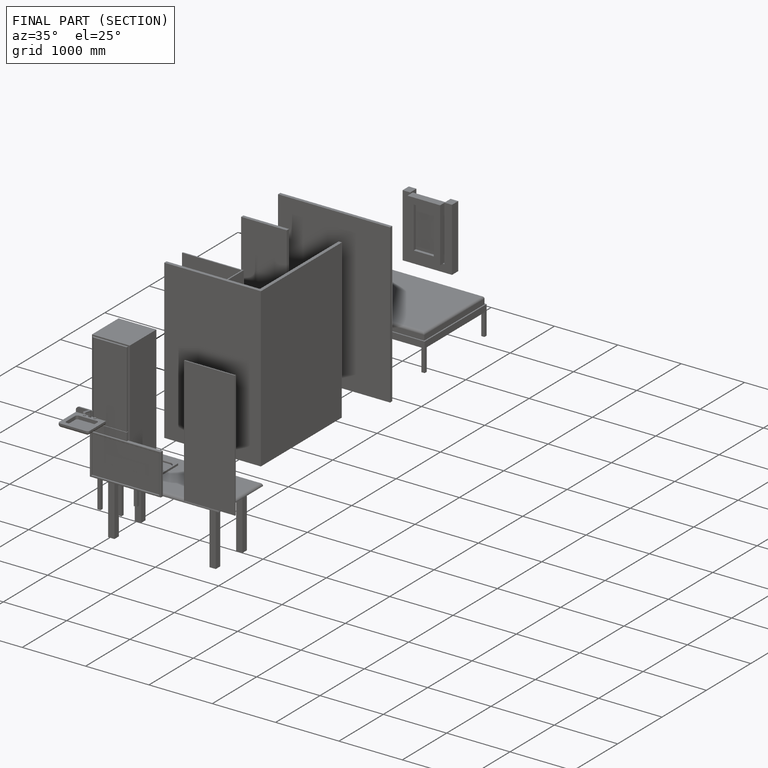
[diagram: finished part — half-section view (interior)]
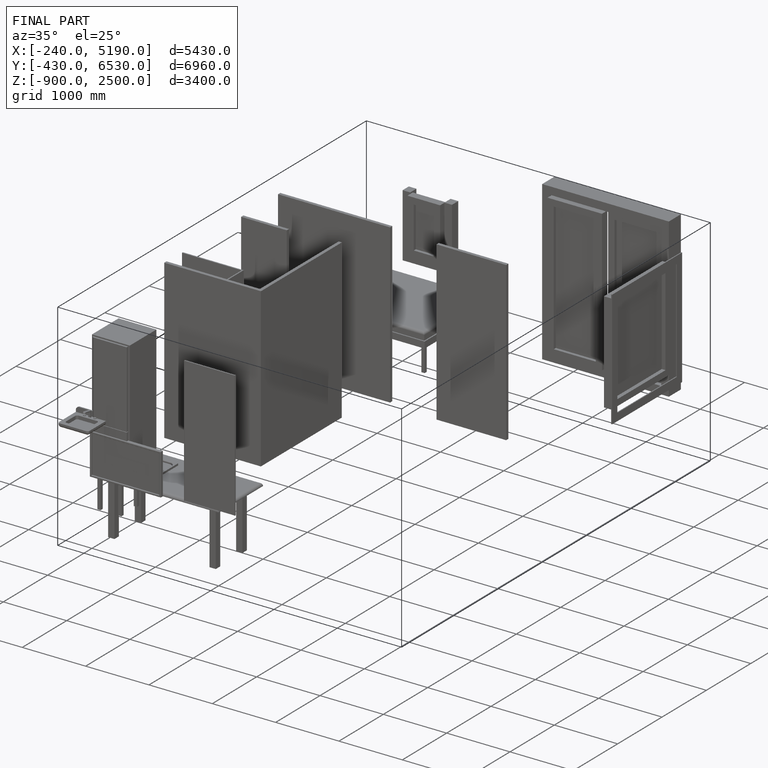
[diagram: finished part — iso view with bounding-box wireframe]
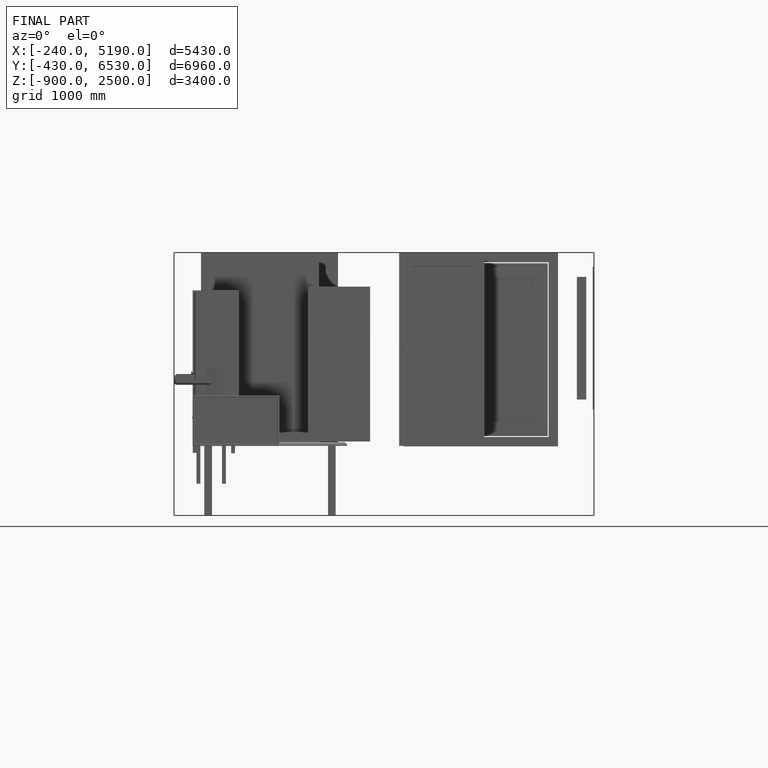
[diagram: finished part — front view with bounding-box wireframe]
